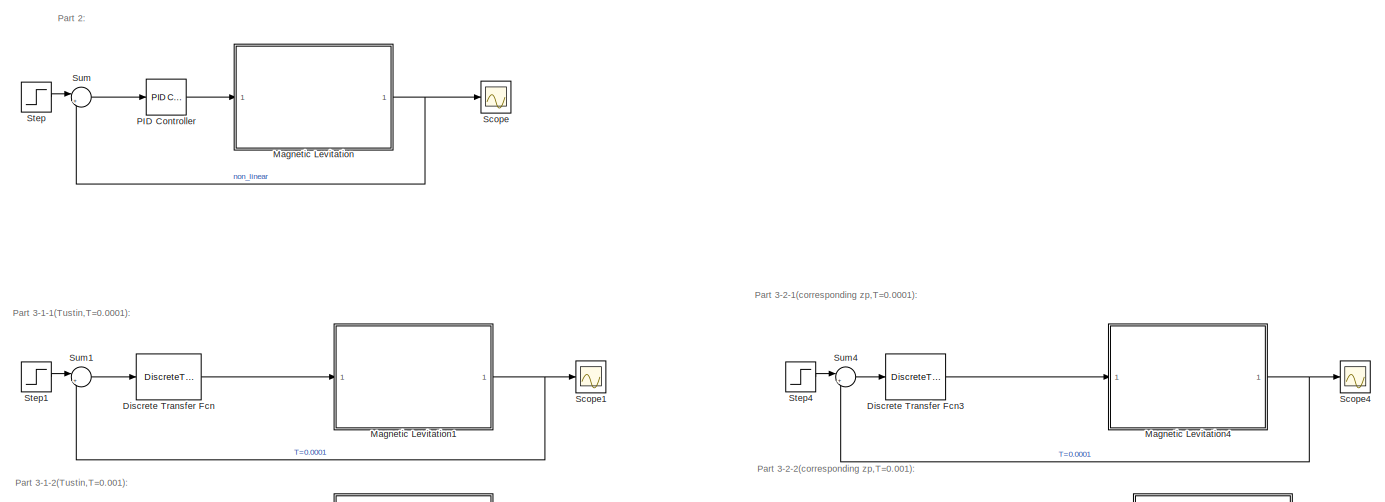
[diagram: root canvas - part 1/4, full width, top band]
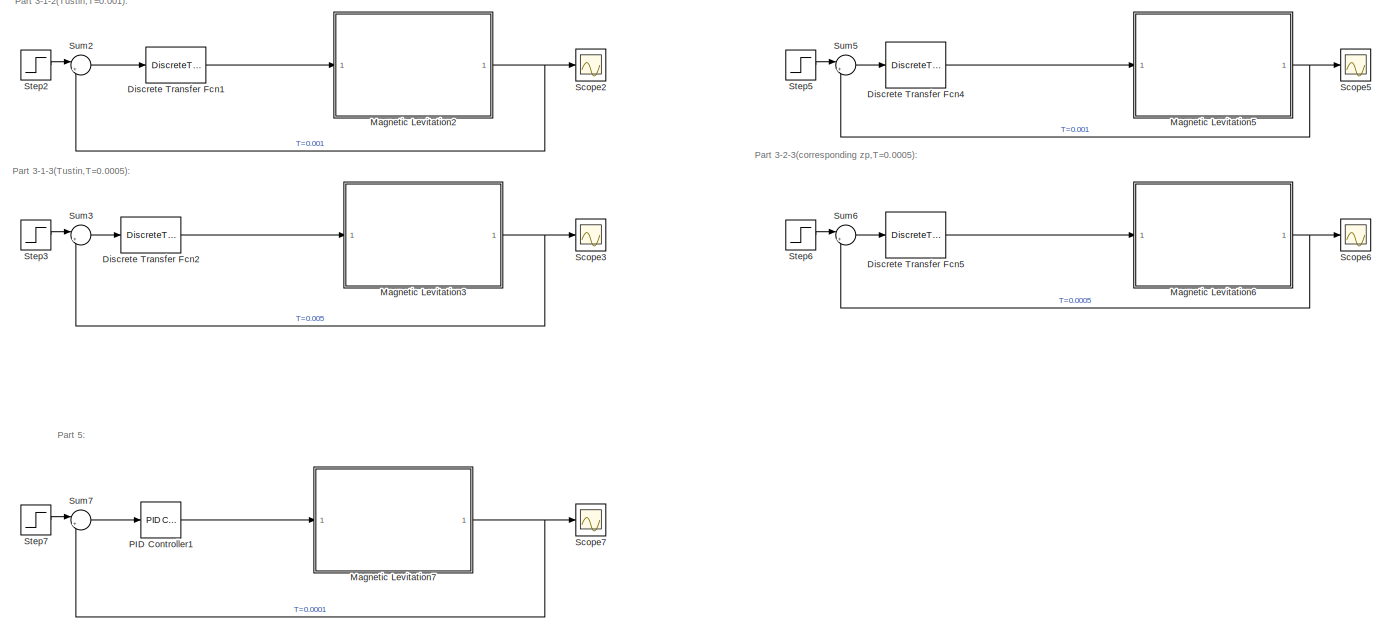
[diagram: root canvas - part 2/4, full width, top band]
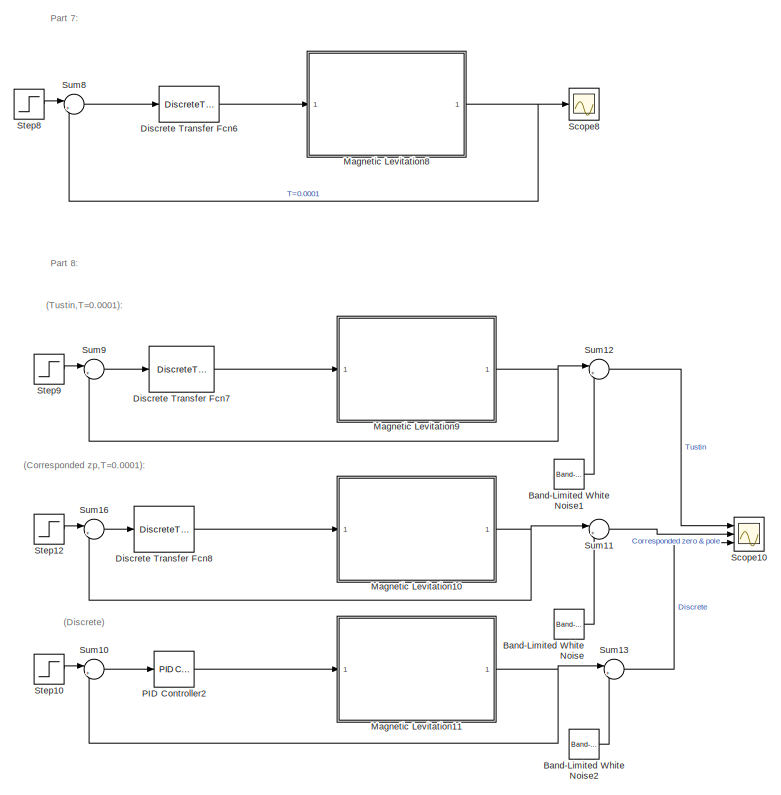
[diagram: root canvas - part 3/4, central region]
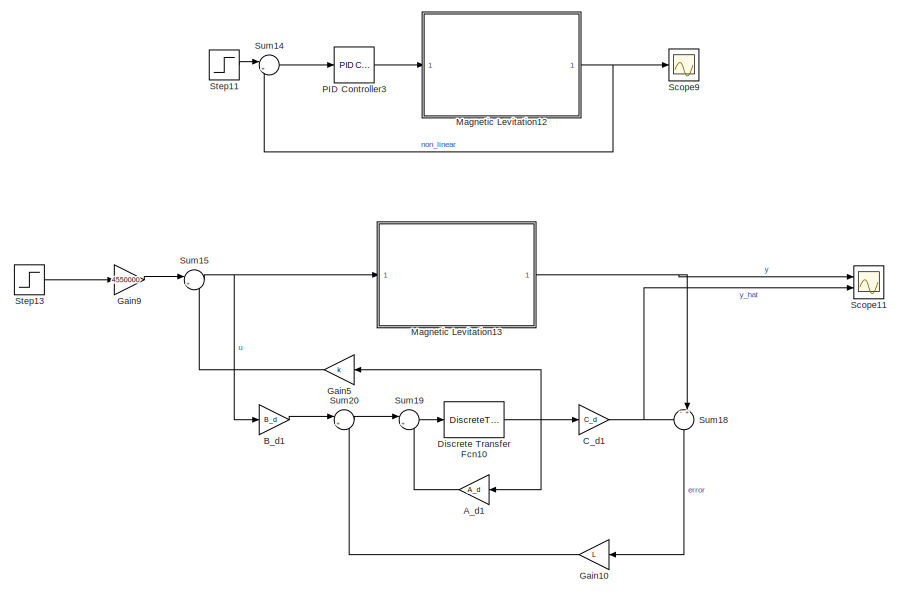
[diagram: root canvas - part 4/4, bottom left region]
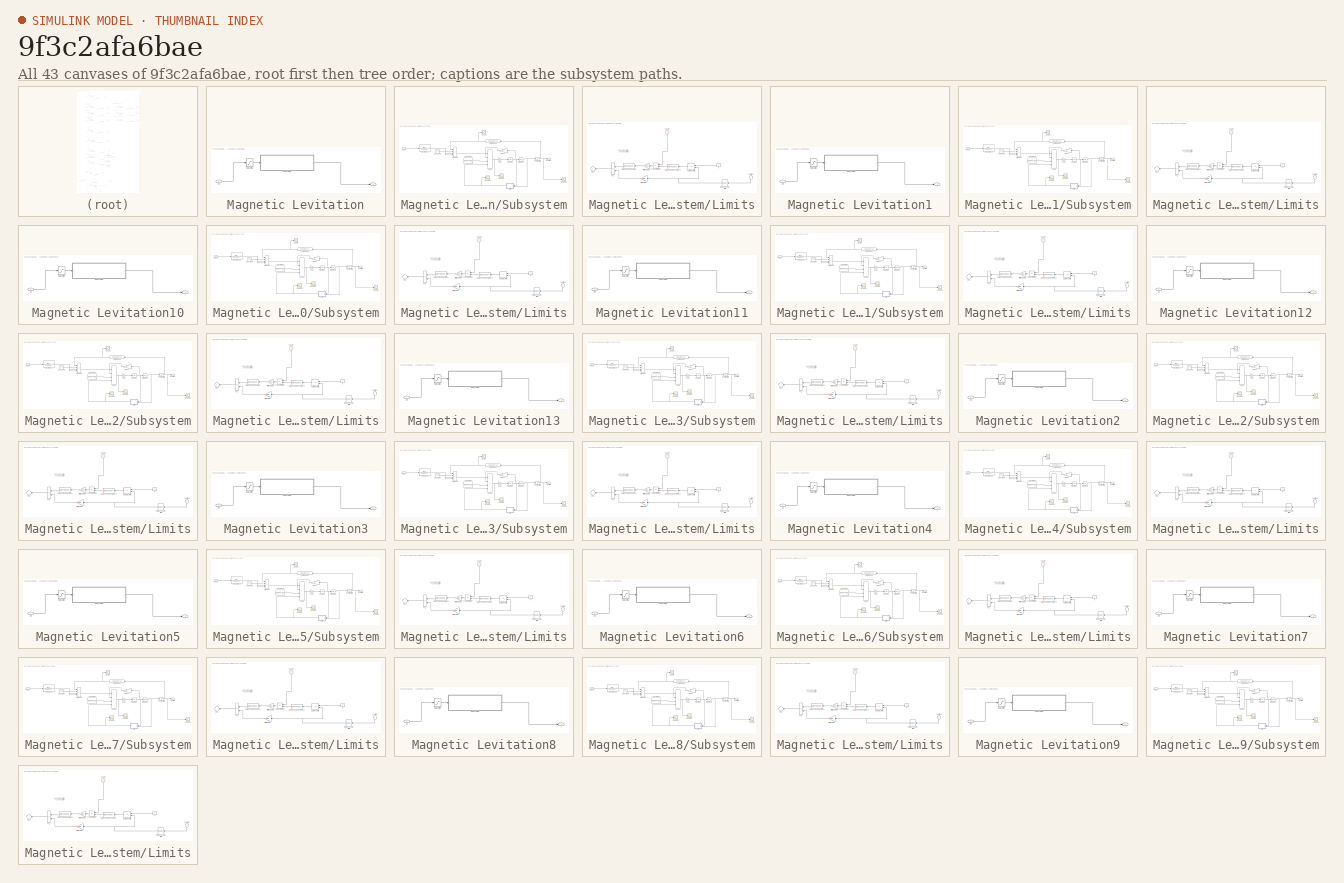
[diagram: thumbnail index - all 43 canvases of the model, root first then tree order]
MODEL slx_9f3c2afa6bae
KIND model
CONFIG AbsTol = auto
CONFIG EnableMultiTasking = off
CONFIG FixedStep = auto
CONFIG MaxStep = auto
CONFIG MinStep = auto
CONFIG RelTol = 1e-3
CONFIG SampleTimeConstraint = Unconstrained
CONFIG SolverName = VariableStepAuto
CONFIG StartTime = 0.0
CONFIG StopTime = 0.1
BLOCK [Gain] A_d1
  Gain = A_d
  Multiplication = Matrix(K*u)
  NameLocation = top
BLOCK [Gain] B_d1
  Gain = B_d
  Multiplication = Matrix(K*u)
BLOCK [Reference] Band-Limited White Noise  REF=simulink/Sources/Band-Limited
White Noise
  Ports = [0, 1]
  SourceBlock = simulink/Sources/Band-Limited\nWhite Noise
  SourceProductBaseCode = SL
  SourceType = Band-Limited White Noise.
BLOCK [Reference] Band-Limited White Noise1  REF=simulink/Sources/Band-Limited
White Noise
  Ports = [0, 1]
  SourceBlock = simulink/Sources/Band-Limited\nWhite Noise
  SourceProductBaseCode = SL
  SourceType = Band-Limited White Noise.
BLOCK [Reference] Band-Limited White Noise2  REF=simulink/Sources/Band-Limited
White Noise
  Ports = [0, 1]
  SourceBlock = simulink/Sources/Band-Limited\nWhite Noise
  SourceProductBaseCode = SL
  SourceType = Band-Limited White Noise.
BLOCK [Gain] C_d1
  Gain = C_d
  Multiplication = Matrix(K*u)
BLOCK [DiscreteTransferFcn] Discrete Transfer Fcn
  Denominator = [9.86914200000000 -8 -1.86914200000000]
  InputPortMap = u0
  Numerator = [38570.0258267180 -77058.6188660459 38488.6093872360]
  Ports = [1, 1]
  SampleTime = 0.0001
BLOCK [DiscreteTransferFcn] Discrete Transfer Fcn1
  Denominator = [62.6914200000000 -8 -54.6914200000000]
  InputPortMap = u0
  Numerator = [38936.8044151132 -77057.8096445937 38122.6400202932]
  Ports = [1, 1]
  SampleTime = 0.001
BLOCK [DiscreteTransferFcn] Discrete Transfer Fcn10
  Denominator = [1 0]
  InputPortMap = u0
  Ports = [1, 1]
BLOCK [DiscreteTransferFcn] Discrete Transfer Fcn2
  Denominator = [33.3457100000000 -8.00000000000000 -25.3457100000000]
  InputPortMap = u0
  Numerator = [38732.9567931308 -77058.4226911484 38325.8745957208]
  Ports = [1, 1]
  SampleTime = 0.0005
BLOCK [DiscreteTransferFcn] Discrete Transfer Fcn3
  Denominator = [1 -1.05315351727480 0.0531535172747958]
  InputPortMap = u0
  Numerator = 1000*[1 -1.99788732081826 0.997889127214699]
  Ports = [1, 1]
  SampleTime = 0.0001
BLOCK [DiscreteTransferFcn] Discrete Transfer Fcn4
  Denominator = [1 -1.00000000000018 1.80019719003715e-13]
  InputPortMap = u0
  Numerator = 1000*[1 -1.97891172719588 0.979090657910839]
  Ports = [1, 1]
  SampleTime = 0.001
BLOCK [DiscreteTransferFcn] Discrete Transfer Fcn5
  Denominator = [1 -1.00000042428731 4.24287307144245e-07]
  InputPortMap = u0
  Numerator = [1000 -1989.44513045919 989.490099955951]
  Ports = [1, 1]
  SampleTime = 0.0005
BLOCK [DiscreteTransferFcn] Discrete Transfer Fcn6
  Commented = through
  Denominator = [3.6e-08 1.26e-07 -9.71-08 -2.29e-07 7.3e-08 7.8658e-08 1.2e-08]
  InputPortMap = u0
  Numerator = [0.5 0.16549 -4.335 6.6569 -3.153 -0.169 0.33]
  Ports = [1, 1]
  SampleTime = 0.0001
BLOCK [DiscreteTransferFcn] Discrete Transfer Fcn7
  Denominator = [9.86914200000000 -8 -1.86914200000000]
  InputPortMap = u0
  Numerator = [38570.0258267180 -77058.6188660459 38488.6093872360]
  Ports = [1, 1]
  SampleTime = 0.0001
BLOCK [DiscreteTransferFcn] Discrete Transfer Fcn8
  Denominator = [1 -1.05315351727480 0.0531535172747958]
  InputPortMap = u0
  Numerator = 1000*[1 -1.99788732081826 0.997889127214699]
  Ports = [1, 1]
  SampleTime = 0.0001
BLOCK [Gain] Gain10
  Gain = L
  Multiplication = Matrix(K*u)
  NameLocation = top
BLOCK [Gain] Gain5
  Gain = k
  Multiplication = Matrix(K*u)
  NameLocation = top
BLOCK [Gain] Gain9
  Gain = 4550000
BLOCK [SubSystem] Magnetic Levitation
  Permissions = NoReadOrWrite
  Ports = [1, 1]
  RequestExecContextInheritance = off
BLOCK [Saturate] Magnetic Levitation/Saturation
  LowerLimit = -6
  UpperLimit = 10
  ZeroCross = off
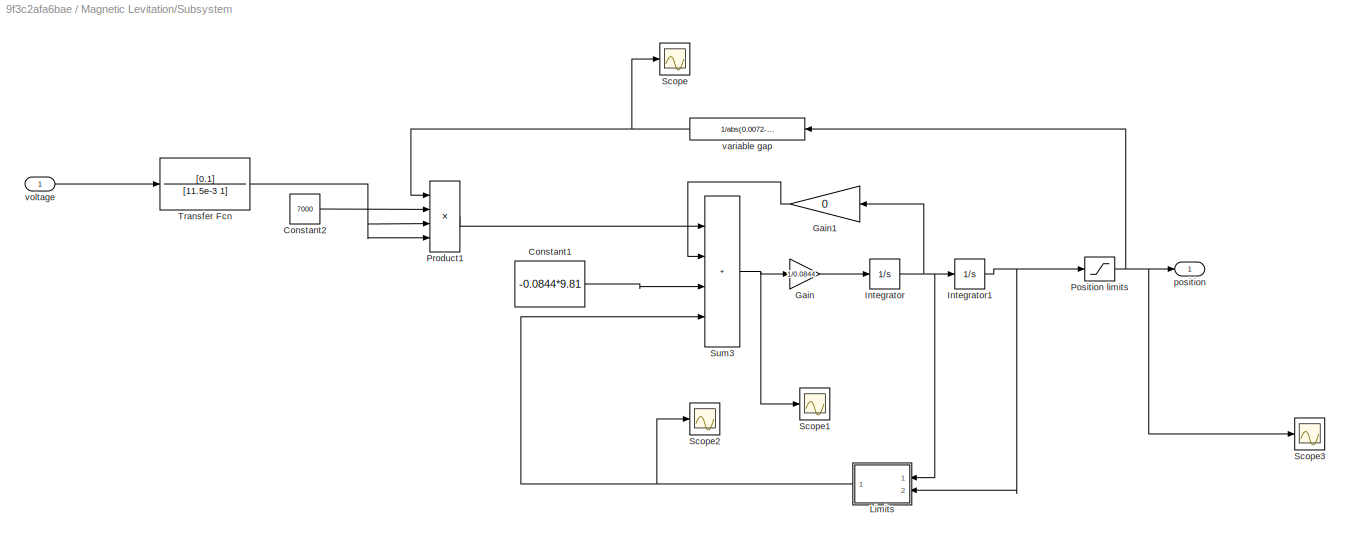
BLOCK [SubSystem] Magnetic Levitation/Subsystem
  Ports = [1, 1]
  RequestExecContextInheritance = off
BLOCK [Constant] Magnetic Levitation/Subsystem/Constant1
  Value = -0.0844*9.81
BLOCK [Constant] Magnetic Levitation/Subsystem/Constant2
  Value = 7000
BLOCK [Gain] Magnetic Levitation/Subsystem/Gain
  Gain = 1/0.0844
BLOCK [Gain] Magnetic Levitation/Subsystem/Gain1
  Gain = 0
  NameLocation = top
BLOCK [Integrator] Magnetic Levitation/Subsystem/Integrator
  Ports = [1, 1]
BLOCK [Integrator] Magnetic Levitation/Subsystem/Integrator1
  LimitOutput = on
  LowerSaturationLimit = 0
  Ports = [1, 1]
  UpperSaturationLimit = 0.005
BLOCK [SubSystem] Magnetic Levitation/Subsystem/Limits
  Ports = [2, 1]
  RequestExecContextInheritance = off
  ShowPortLabels = none
BLOCK [Constant] Magnetic Levitation/Subsystem/Limits/0
  Value = 0
BLOCK [DataTypeConversion] Magnetic Levitation/Subsystem/Limits/Data Type Conversion
  NameLocation = top
  OutDataTypeStr = double
  RndMeth = Floor
  SaturateOnIntegerOverflow = off
BLOCK [DataTypeConversion] Magnetic Levitation/Subsystem/Limits/Data Type Conversion1
  NameLocation = top
  OutDataTypeStr = double
  RndMeth = Floor
  SaturateOnIntegerOverflow = off
BLOCK [DeadZone] Magnetic Levitation/Subsystem/Limits/Distance out of limits
  LowerValue = 0.0002
  UpperValue = 5e-3
  ZeroCross = off
BLOCK [Sum] Magnetic Levitation/Subsystem/Limits/Fc1
  IconShape = rectangular
  InputSameDT = on
  Inputs = --
  OutDataTypeStr = Inherit: Same as first input
  Ports = [2, 1]
  SaturateOnIntegerOverflow = on
BLOCK [Product] Magnetic Levitation/Subsystem/Limits/Just on//off switch 
  InputSameDT = on
  OutDataTypeStr = Inherit: Same as first input
  Ports = [2, 1]
  SaturateOnIntegerOverflow = on
BLOCK [RelationalOperator] Magnetic Levitation/Subsystem/Limits/Outside Limits
  Operator = ~=
  Ports = [2, 1]
BLOCK [Outport] Magnetic Levitation/Subsystem/Limits/force
  VectorParamsAs1DForOutWhenUnconnected = off
BLOCK [Gain] Magnetic Levitation/Subsystem/Limits/limit damping
  Gain = 2800
  OutDataTypeStr = Inherit: Same as input
  ParamDataTypeStr = Inherit: Same as input
  SaturateOnIntegerOverflow = on
BLOCK [Gain] Magnetic Levitation/Subsystem/Limits/limit elasticity
  Gain = 500
  OutDataTypeStr = Inherit: Same as input
  ParamDataTypeStr = Inherit: Same as input
  SaturateOnIntegerOverflow = on
BLOCK [Inport] Magnetic Levitation/Subsystem/Limits/position
  NameLocation = right
  Port = 2
BLOCK [Inport] Magnetic Levitation/Subsystem/Limits/velocity
  NameLocation = right
BLOCK [Saturate] Magnetic Levitation/Subsystem/Position limits
  LowerLimit = 0.00001
  UpperLimit = 0.00499
  ZeroCross = off
BLOCK [Product] Magnetic Levitation/Subsystem/Product1
  Inputs = 4
  Ports = [4, 1]
BLOCK [Scope] Magnetic Levitation/Subsystem/Scope
  Floating = off
  NumInputPorts = 1
  Ports = [1]
  ScopeSpecificationString = Simulink.scopes.TimeScopeBlockCfg('CurrentConfiguration', extmgr.ConfigurationSet(extmgr.Configuration('Core','General UI',true),extmgr.Configuration('Core','Source UI',true),extmgr.Configuration('Sources','WiredSimulink',true,'DataLoggingVariableName','ScopeData1'),extmgr.Configuration('Visuals','Time Domain',true,'SerializedDisplays',{struct('MinYLimReal','-40.54054','MaxYLimReal','374.87487','Y...<+1381ch>  <repeated x14 — deduplicated; at blocks: Scope>
BLOCK [Scope] Magnetic Levitation/Subsystem/Scope1
  Floating = off
  NumInputPorts = 1
  Ports = [1]
  ScopeSpecificationString = Simulink.scopes.TimeScopeBlockCfg('CurrentConfiguration', extmgr.ConfigurationSet(extmgr.Configuration('Core','General UI',true),extmgr.Configuration('Core','Source UI',true),extmgr.Configuration('Sources','WiredSimulink',true,'DataLoggingVariableName','ScopeData2'),extmgr.Configuration('Visuals','Time Domain',true,'SerializedDisplays',{struct('MinYLimReal','-21376391083219120442781708779858395089...<+3841ch>  <repeated x14 — deduplicated; at blocks: Scope1>
BLOCK [Scope] Magnetic Levitation/Subsystem/Scope2
  Floating = off
  NumInputPorts = 1
  Ports = [1]
  ScopeSpecificationString = Simulink.scopes.TimeScopeBlockCfg('CurrentConfiguration', extmgr.ConfigurationSet(extmgr.Configuration('Core','General UI',true),extmgr.Configuration('Core','Source UI',true),extmgr.Configuration('Sources','WiredSimulink',true,'DataLoggingVariableName','ScopeData3'),extmgr.Configuration('Visuals','Time Domain',true,'SerializedDisplays',{struct('MinYLimReal','-0.1107','MaxYLimReal','1.19629','YLabe...<+1363ch>  <repeated x14 — deduplicated; at blocks: Scope2>
BLOCK [Scope] Magnetic Levitation/Subsystem/Scope3
  Floating = off
  NumInputPorts = 1
  Ports = [1]
  ScopeSpecificationString = Simulink.scopes.TimeScopeBlockCfg('CurrentConfiguration', extmgr.ConfigurationSet(extmgr.Configuration('Core','General UI',true),extmgr.Configuration('Core','Source UI',true),extmgr.Configuration('Sources','WiredSimulink',true,'DataLoggingVariableName','ScopeData2'),extmgr.Configuration('Visuals','Time Domain',true,'SerializedDisplays',{struct('MinYLimReal','-0.00029','MaxYLimReal','0.00267','YLab...<+1402ch>  <repeated x14 — deduplicated; at blocks: Scope3>
BLOCK [Sum] Magnetic Levitation/Subsystem/Sum3
  IconShape = rectangular
  Inputs = ++++
  Ports = [4, 1]
BLOCK [TransferFcn] Magnetic Levitation/Subsystem/Transfer Fcn
  Denominator = [11.5e-3 1]
  Numerator = [0.1]
BLOCK [Outport] Magnetic Levitation/Subsystem/position 
  VectorParamsAs1DForOutWhenUnconnected = off
BLOCK [Fcn] Magnetic Levitation/Subsystem/variable gap
  Expr = 1/abs(0.0072-u)
BLOCK [Inport] Magnetic Levitation/Subsystem/voltage
BLOCK [Inport] Magnetic Levitation/Vin
BLOCK [Outport] Magnetic Levitation/y
  VectorParamsAs1DForOutWhenUnconnected = off
BLOCK [SubSystem] Magnetic Levitation1
  Permissions = NoReadOrWrite
  Ports = [1, 1]
  RequestExecContextInheritance = off
BLOCK [Saturate] Magnetic Levitation1/Saturation
  LowerLimit = -6
  UpperLimit = 10
  ZeroCross = off
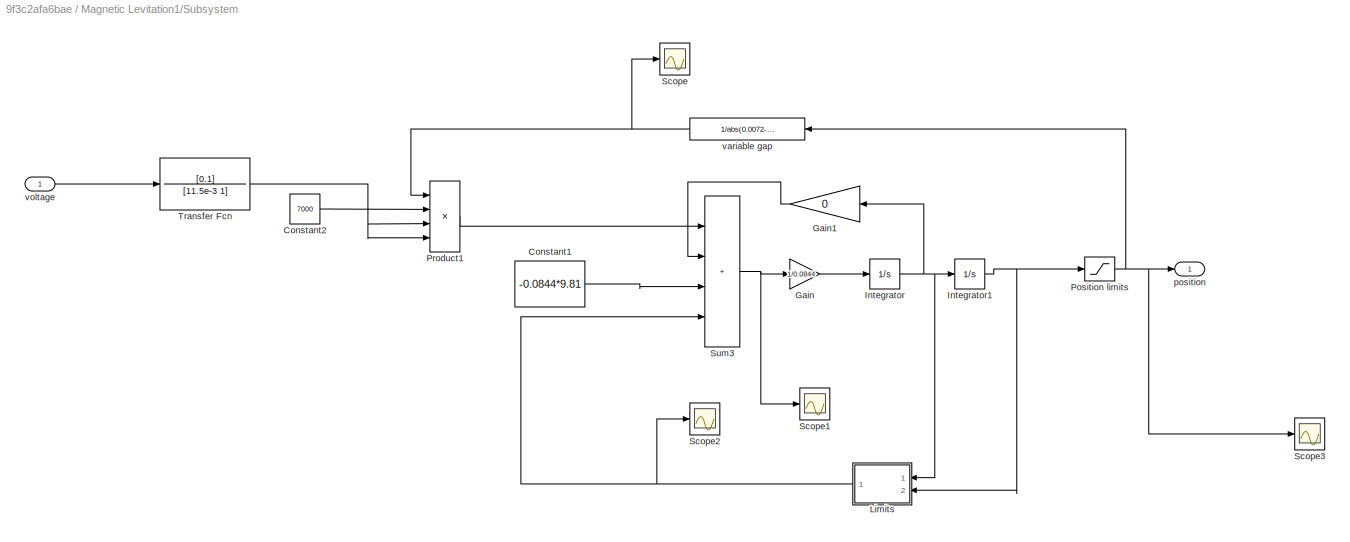
BLOCK [SubSystem] Magnetic Levitation1/Subsystem
  Ports = [1, 1]
  RequestExecContextInheritance = off
BLOCK [Constant] Magnetic Levitation1/Subsystem/Constant1
  Value = -0.0844*9.81
BLOCK [Constant] Magnetic Levitation1/Subsystem/Constant2
  Value = 7000
BLOCK [Gain] Magnetic Levitation1/Subsystem/Gain
  Gain = 1/0.0844
BLOCK [Gain] Magnetic Levitation1/Subsystem/Gain1
  Gain = 0
  NameLocation = top
BLOCK [Integrator] Magnetic Levitation1/Subsystem/Integrator
  Ports = [1, 1]
BLOCK [Integrator] Magnetic Levitation1/Subsystem/Integrator1
  LimitOutput = on
  LowerSaturationLimit = 0
  Ports = [1, 1]
  UpperSaturationLimit = 0.005
BLOCK [SubSystem] Magnetic Levitation1/Subsystem/Limits
  Ports = [2, 1]
  RequestExecContextInheritance = off
  ShowPortLabels = none
BLOCK [Constant] Magnetic Levitation1/Subsystem/Limits/0
  Value = 0
BLOCK [DataTypeConversion] Magnetic Levitation1/Subsystem/Limits/Data Type Conversion
  NameLocation = top
  OutDataTypeStr = double
  RndMeth = Floor
  SaturateOnIntegerOverflow = off
BLOCK [DataTypeConversion] Magnetic Levitation1/Subsystem/Limits/Data Type Conversion1
  NameLocation = top
  OutDataTypeStr = double
  RndMeth = Floor
  SaturateOnIntegerOverflow = off
BLOCK [DeadZone] Magnetic Levitation1/Subsystem/Limits/Distance out of limits
  LowerValue = 0.0002
  UpperValue = 5e-3
  ZeroCross = off
BLOCK [Sum] Magnetic Levitation1/Subsystem/Limits/Fc1
  IconShape = rectangular
  InputSameDT = on
  Inputs = --
  OutDataTypeStr = Inherit: Same as first input
  Ports = [2, 1]
  SaturateOnIntegerOverflow = on
BLOCK [Product] Magnetic Levitation1/Subsystem/Limits/Just on//off switch 
  InputSameDT = on
  OutDataTypeStr = Inherit: Same as first input
  Ports = [2, 1]
  SaturateOnIntegerOverflow = on
BLOCK [RelationalOperator] Magnetic Levitation1/Subsystem/Limits/Outside Limits
  Operator = ~=
  Ports = [2, 1]
BLOCK [Outport] Magnetic Levitation1/Subsystem/Limits/force
  VectorParamsAs1DForOutWhenUnconnected = off
BLOCK [Gain] Magnetic Levitation1/Subsystem/Limits/limit damping
  Gain = 2800
  OutDataTypeStr = Inherit: Same as input
  ParamDataTypeStr = Inherit: Same as input
  SaturateOnIntegerOverflow = on
BLOCK [Gain] Magnetic Levitation1/Subsystem/Limits/limit elasticity
  Gain = 500
  OutDataTypeStr = Inherit: Same as input
  ParamDataTypeStr = Inherit: Same as input
  SaturateOnIntegerOverflow = on
BLOCK [Inport] Magnetic Levitation1/Subsystem/Limits/position
  NameLocation = right
  Port = 2
BLOCK [Inport] Magnetic Levitation1/Subsystem/Limits/velocity
  NameLocation = right
BLOCK [Saturate] Magnetic Levitation1/Subsystem/Position limits
  LowerLimit = 0.00001
  UpperLimit = 0.00499
  ZeroCross = off
BLOCK [Product] Magnetic Levitation1/Subsystem/Product1
  Inputs = 4
  Ports = [4, 1]
BLOCK [Scope] Magnetic Levitation1/Subsystem/Scope
  Floating = off
  NumInputPorts = 1
  Ports = [1]
BLOCK [Scope] Magnetic Levitation1/Subsystem/Scope1
  Floating = off
  NumInputPorts = 1
  Ports = [1]
BLOCK [Scope] Magnetic Levitation1/Subsystem/Scope2
  Floating = off
  NumInputPorts = 1
  Ports = [1]
BLOCK [Scope] Magnetic Levitation1/Subsystem/Scope3
  Floating = off
  NumInputPorts = 1
  Ports = [1]
BLOCK [Sum] Magnetic Levitation1/Subsystem/Sum3
  IconShape = rectangular
  Inputs = ++++
  Ports = [4, 1]
BLOCK [TransferFcn] Magnetic Levitation1/Subsystem/Transfer Fcn
  Denominator = [11.5e-3 1]
  Numerator = [0.1]
BLOCK [Outport] Magnetic Levitation1/Subsystem/position 
  VectorParamsAs1DForOutWhenUnconnected = off
BLOCK [Fcn] Magnetic Levitation1/Subsystem/variable gap
  Expr = 1/abs(0.0072-u)
BLOCK [Inport] Magnetic Levitation1/Subsystem/voltage
BLOCK [Inport] Magnetic Levitation1/Vin
BLOCK [Outport] Magnetic Levitation1/y
  VectorParamsAs1DForOutWhenUnconnected = off
BLOCK [SubSystem] Magnetic Levitation10
  Permissions = NoReadOrWrite
  Ports = [1, 1]
  RequestExecContextInheritance = off
BLOCK [Saturate] Magnetic Levitation10/Saturation
  LowerLimit = -6
  UpperLimit = 10
  ZeroCross = off
BLOCK [SubSystem] Magnetic Levitation10/Subsystem
  Ports = [1, 1]
  RequestExecContextInheritance = off
BLOCK [Constant] Magnetic Levitation10/Subsystem/Constant1
  Value = -0.0844*9.81
BLOCK [Constant] Magnetic Levitation10/Subsystem/Constant2
  Value = 7000
BLOCK [Gain] Magnetic Levitation10/Subsystem/Gain
  Gain = 1/0.0844
BLOCK [Gain] Magnetic Levitation10/Subsystem/Gain1
  Gain = 0
  NameLocation = top
BLOCK [Integrator] Magnetic Levitation10/Subsystem/Integrator
  Ports = [1, 1]
BLOCK [Integrator] Magnetic Levitation10/Subsystem/Integrator1
  LimitOutput = on
  LowerSaturationLimit = 0
  Ports = [1, 1]
  UpperSaturationLimit = 0.005
BLOCK [SubSystem] Magnetic Levitation10/Subsystem/Limits
  Ports = [2, 1]
  RequestExecContextInheritance = off
  ShowPortLabels = none
BLOCK [Constant] Magnetic Levitation10/Subsystem/Limits/0
  Value = 0
BLOCK [DataTypeConversion] Magnetic Levitation10/Subsystem/Limits/Data Type Conversion
  NameLocation = top
  OutDataTypeStr = double
  RndMeth = Floor
  SaturateOnIntegerOverflow = off
BLOCK [DataTypeConversion] Magnetic Levitation10/Subsystem/Limits/Data Type Conversion1
  NameLocation = top
  OutDataTypeStr = double
  RndMeth = Floor
  SaturateOnIntegerOverflow = off
BLOCK [DeadZone] Magnetic Levitation10/Subsystem/Limits/Distance out of limits
  LowerValue = 0.0002
  UpperValue = 5e-3
  ZeroCross = off
BLOCK [Sum] Magnetic Levitation10/Subsystem/Limits/Fc1
  IconShape = rectangular
  InputSameDT = on
  Inputs = --
  OutDataTypeStr = Inherit: Same as first input
  Ports = [2, 1]
  SaturateOnIntegerOverflow = on
BLOCK [Product] Magnetic Levitation10/Subsystem/Limits/Just on//off switch 
  InputSameDT = on
  OutDataTypeStr = Inherit: Same as first input
  Ports = [2, 1]
  SaturateOnIntegerOverflow = on
BLOCK [RelationalOperator] Magnetic Levitation10/Subsystem/Limits/Outside Limits
  Operator = ~=
  Ports = [2, 1]
BLOCK [Outport] Magnetic Levitation10/Subsystem/Limits/force
  VectorParamsAs1DForOutWhenUnconnected = off
BLOCK [Gain] Magnetic Levitation10/Subsystem/Limits/limit damping
  Gain = 2800
  OutDataTypeStr = Inherit: Same as input
  ParamDataTypeStr = Inherit: Same as input
  SaturateOnIntegerOverflow = on
BLOCK [Gain] Magnetic Levitation10/Subsystem/Limits/limit elasticity
  Gain = 500
  OutDataTypeStr = Inherit: Same as input
  ParamDataTypeStr = Inherit: Same as input
  SaturateOnIntegerOverflow = on
BLOCK [Inport] Magnetic Levitation10/Subsystem/Limits/position
  NameLocation = right
  Port = 2
BLOCK [Inport] Magnetic Levitation10/Subsystem/Limits/velocity
  NameLocation = right
BLOCK [Saturate] Magnetic Levitation10/Subsystem/Position limits
  LowerLimit = 0.00001
  UpperLimit = 0.00499
  ZeroCross = off
BLOCK [Product] Magnetic Levitation10/Subsystem/Product1
  Inputs = 4
  Ports = [4, 1]
BLOCK [Scope] Magnetic Levitation10/Subsystem/Scope
  Floating = off
  NumInputPorts = 1
  Ports = [1]
BLOCK [Scope] Magnetic Levitation10/Subsystem/Scope1
  Floating = off
  NumInputPorts = 1
  Ports = [1]
BLOCK [Scope] Magnetic Levitation10/Subsystem/Scope2
  Floating = off
  NumInputPorts = 1
  Ports = [1]
BLOCK [Scope] Magnetic Levitation10/Subsystem/Scope3
  Floating = off
  NumInputPorts = 1
  Ports = [1]
BLOCK [Sum] Magnetic Levitation10/Subsystem/Sum3
  IconShape = rectangular
  Inputs = ++++
  Ports = [4, 1]
BLOCK [TransferFcn] Magnetic Levitation10/Subsystem/Transfer Fcn
  Denominator = [11.5e-3 1]
  Numerator = [0.1]
BLOCK [Outport] Magnetic Levitation10/Subsystem/position 
  VectorParamsAs1DForOutWhenUnconnected = off
BLOCK [Fcn] Magnetic Levitation10/Subsystem/variable gap
  Expr = 1/abs(0.0072-u)
BLOCK [Inport] Magnetic Levitation10/Subsystem/voltage
BLOCK [Inport] Magnetic Levitation10/Vin
BLOCK [Outport] Magnetic Levitation10/y
  VectorParamsAs1DForOutWhenUnconnected = off
BLOCK [SubSystem] Magnetic Levitation11
  Permissions = NoReadOrWrite
  Ports = [1, 1]
  RequestExecContextInheritance = off
BLOCK [Saturate] Magnetic Levitation11/Saturation
  LowerLimit = -6
  UpperLimit = 10
  ZeroCross = off
BLOCK [SubSystem] Magnetic Levitation11/Subsystem
  Ports = [1, 1]
  RequestExecContextInheritance = off
BLOCK [Constant] Magnetic Levitation11/Subsystem/Constant1
  Value = -0.0844*9.81
BLOCK [Constant] Magnetic Levitation11/Subsystem/Constant2
  Value = 7000
BLOCK [Gain] Magnetic Levitation11/Subsystem/Gain
  Gain = 1/0.0844
BLOCK [Gain] Magnetic Levitation11/Subsystem/Gain1
  Gain = 0
  NameLocation = top
BLOCK [Integrator] Magnetic Levitation11/Subsystem/Integrator
  Ports = [1, 1]
BLOCK [Integrator] Magnetic Levitation11/Subsystem/Integrator1
  LimitOutput = on
  LowerSaturationLimit = 0
  Ports = [1, 1]
  UpperSaturationLimit = 0.005
BLOCK [SubSystem] Magnetic Levitation11/Subsystem/Limits
  Ports = [2, 1]
  RequestExecContextInheritance = off
  ShowPortLabels = none
BLOCK [Constant] Magnetic Levitation11/Subsystem/Limits/0
  Value = 0
BLOCK [DataTypeConversion] Magnetic Levitation11/Subsystem/Limits/Data Type Conversion
  NameLocation = top
  OutDataTypeStr = double
  RndMeth = Floor
  SaturateOnIntegerOverflow = off
BLOCK [DataTypeConversion] Magnetic Levitation11/Subsystem/Limits/Data Type Conversion1
  NameLocation = top
  OutDataTypeStr = double
  RndMeth = Floor
  SaturateOnIntegerOverflow = off
BLOCK [DeadZone] Magnetic Levitation11/Subsystem/Limits/Distance out of limits
  LowerValue = 0.0002
  UpperValue = 5e-3
  ZeroCross = off
BLOCK [Sum] Magnetic Levitation11/Subsystem/Limits/Fc1
  IconShape = rectangular
  InputSameDT = on
  Inputs = --
  OutDataTypeStr = Inherit: Same as first input
  Ports = [2, 1]
  SaturateOnIntegerOverflow = on
BLOCK [Product] Magnetic Levitation11/Subsystem/Limits/Just on//off switch 
  InputSameDT = on
  OutDataTypeStr = Inherit: Same as first input
  Ports = [2, 1]
  SaturateOnIntegerOverflow = on
BLOCK [RelationalOperator] Magnetic Levitation11/Subsystem/Limits/Outside Limits
  Operator = ~=
  Ports = [2, 1]
BLOCK [Outport] Magnetic Levitation11/Subsystem/Limits/force
  VectorParamsAs1DForOutWhenUnconnected = off
BLOCK [Gain] Magnetic Levitation11/Subsystem/Limits/limit damping
  Gain = 2800
  OutDataTypeStr = Inherit: Same as input
  ParamDataTypeStr = Inherit: Same as input
  SaturateOnIntegerOverflow = on
BLOCK [Gain] Magnetic Levitation11/Subsystem/Limits/limit elasticity
  Gain = 500
  OutDataTypeStr = Inherit: Same as input
  ParamDataTypeStr = Inherit: Same as input
  SaturateOnIntegerOverflow = on
BLOCK [Inport] Magnetic Levitation11/Subsystem/Limits/position
  NameLocation = right
  Port = 2
BLOCK [Inport] Magnetic Levitation11/Subsystem/Limits/velocity
  NameLocation = right
BLOCK [Saturate] Magnetic Levitation11/Subsystem/Position limits
  LowerLimit = 0.00001
  UpperLimit = 0.00499
  ZeroCross = off
BLOCK [Product] Magnetic Levitation11/Subsystem/Product1
  Inputs = 4
  Ports = [4, 1]
BLOCK [Scope] Magnetic Levitation11/Subsystem/Scope
  Floating = off
  NumInputPorts = 1
  Ports = [1]
BLOCK [Scope] Magnetic Levitation11/Subsystem/Scope1
  Floating = off
  NumInputPorts = 1
  Ports = [1]
BLOCK [Scope] Magnetic Levitation11/Subsystem/Scope2
  Floating = off
  NumInputPorts = 1
  Ports = [1]
BLOCK [Scope] Magnetic Levitation11/Subsystem/Scope3
  Floating = off
  NumInputPorts = 1
  Ports = [1]
BLOCK [Sum] Magnetic Levitation11/Subsystem/Sum3
  IconShape = rectangular
  Inputs = ++++
  Ports = [4, 1]
BLOCK [TransferFcn] Magnetic Levitation11/Subsystem/Transfer Fcn
  Denominator = [11.5e-3 1]
  Numerator = [0.1]
BLOCK [Outport] Magnetic Levitation11/Subsystem/position 
  VectorParamsAs1DForOutWhenUnconnected = off
BLOCK [Fcn] Magnetic Levitation11/Subsystem/variable gap
  Expr = 1/abs(0.0072-u)
BLOCK [Inport] Magnetic Levitation11/Subsystem/voltage
BLOCK [Inport] Magnetic Levitation11/Vin
BLOCK [Outport] Magnetic Levitation11/y
  VectorParamsAs1DForOutWhenUnconnected = off
BLOCK [SubSystem] Magnetic Levitation12
  Permissions = NoReadOrWrite
  Ports = [1, 1]
  RequestExecContextInheritance = off
BLOCK [Saturate] Magnetic Levitation12/Saturation
  LowerLimit = -6
  UpperLimit = 10
  ZeroCross = off
BLOCK [SubSystem] Magnetic Levitation12/Subsystem
  Ports = [1, 1]
  RequestExecContextInheritance = off
BLOCK [Constant] Magnetic Levitation12/Subsystem/Constant1
  Value = -0.0844*9.81
BLOCK [Constant] Magnetic Levitation12/Subsystem/Constant2
  Value = 7000
BLOCK [Gain] Magnetic Levitation12/Subsystem/Gain
  Gain = 1/0.0844
BLOCK [Gain] Magnetic Levitation12/Subsystem/Gain1
  Gain = 0
  NameLocation = top
BLOCK [Integrator] Magnetic Levitation12/Subsystem/Integrator
  Ports = [1, 1]
BLOCK [Integrator] Magnetic Levitation12/Subsystem/Integrator1
  LimitOutput = on
  LowerSaturationLimit = 0
  Ports = [1, 1]
  UpperSaturationLimit = 0.005
BLOCK [SubSystem] Magnetic Levitation12/Subsystem/Limits
  Ports = [2, 1]
  RequestExecContextInheritance = off
  ShowPortLabels = none
BLOCK [Constant] Magnetic Levitation12/Subsystem/Limits/0
  Value = 0
BLOCK [DataTypeConversion] Magnetic Levitation12/Subsystem/Limits/Data Type Conversion
  NameLocation = top
  OutDataTypeStr = double
  RndMeth = Floor
  SaturateOnIntegerOverflow = off
BLOCK [DataTypeConversion] Magnetic Levitation12/Subsystem/Limits/Data Type Conversion1
  NameLocation = top
  OutDataTypeStr = double
  RndMeth = Floor
  SaturateOnIntegerOverflow = off
BLOCK [DeadZone] Magnetic Levitation12/Subsystem/Limits/Distance out of limits
  LowerValue = 0.0002
  UpperValue = 5e-3
  ZeroCross = off
BLOCK [Sum] Magnetic Levitation12/Subsystem/Limits/Fc1
  IconShape = rectangular
  InputSameDT = on
  Inputs = --
  OutDataTypeStr = Inherit: Same as first input
  Ports = [2, 1]
  SaturateOnIntegerOverflow = on
BLOCK [Product] Magnetic Levitation12/Subsystem/Limits/Just on//off switch 
  InputSameDT = on
  OutDataTypeStr = Inherit: Same as first input
  Ports = [2, 1]
  SaturateOnIntegerOverflow = on
BLOCK [RelationalOperator] Magnetic Levitation12/Subsystem/Limits/Outside Limits
  Operator = ~=
  Ports = [2, 1]
BLOCK [Outport] Magnetic Levitation12/Subsystem/Limits/force
  VectorParamsAs1DForOutWhenUnconnected = off
BLOCK [Gain] Magnetic Levitation12/Subsystem/Limits/limit damping
  Gain = 2800
  OutDataTypeStr = Inherit: Same as input
  ParamDataTypeStr = Inherit: Same as input
  SaturateOnIntegerOverflow = on
BLOCK [Gain] Magnetic Levitation12/Subsystem/Limits/limit elasticity
  Gain = 500
  OutDataTypeStr = Inherit: Same as input
  ParamDataTypeStr = Inherit: Same as input
  SaturateOnIntegerOverflow = on
BLOCK [Inport] Magnetic Levitation12/Subsystem/Limits/position
  NameLocation = right
  Port = 2
BLOCK [Inport] Magnetic Levitation12/Subsystem/Limits/velocity
  NameLocation = right
BLOCK [Saturate] Magnetic Levitation12/Subsystem/Position limits
  LowerLimit = 0.00001
  UpperLimit = 0.00499
  ZeroCross = off
BLOCK [Product] Magnetic Levitation12/Subsystem/Product1
  Inputs = 4
  Ports = [4, 1]
BLOCK [Scope] Magnetic Levitation12/Subsystem/Scope
  Floating = off
  NumInputPorts = 1
  Ports = [1]
BLOCK [Scope] Magnetic Levitation12/Subsystem/Scope1
  Floating = off
  NumInputPorts = 1
  Ports = [1]
BLOCK [Scope] Magnetic Levitation12/Subsystem/Scope2
  Floating = off
  NumInputPorts = 1
  Ports = [1]
BLOCK [Scope] Magnetic Levitation12/Subsystem/Scope3
  Floating = off
  NumInputPorts = 1
  Ports = [1]
BLOCK [Sum] Magnetic Levitation12/Subsystem/Sum3
  IconShape = rectangular
  Inputs = ++++
  Ports = [4, 1]
BLOCK [TransferFcn] Magnetic Levitation12/Subsystem/Transfer Fcn
  Denominator = [11.5e-3 1]
  Numerator = [0.1]
BLOCK [Outport] Magnetic Levitation12/Subsystem/position 
  VectorParamsAs1DForOutWhenUnconnected = off
BLOCK [Fcn] Magnetic Levitation12/Subsystem/variable gap
  Expr = 1/abs(0.0072-u)
BLOCK [Inport] Magnetic Levitation12/Subsystem/voltage
BLOCK [Inport] Magnetic Levitation12/Vin
BLOCK [Outport] Magnetic Levitation12/y
  VectorParamsAs1DForOutWhenUnconnected = off
BLOCK [SubSystem] Magnetic Levitation13
  Permissions = NoReadOrWrite
  Ports = [1, 1]
  RequestExecContextInheritance = off
BLOCK [Saturate] Magnetic Levitation13/Saturation
  LowerLimit = -6
  UpperLimit = 10
  ZeroCross = off
BLOCK [SubSystem] Magnetic Levitation13/Subsystem
  Ports = [1, 1]
  RequestExecContextInheritance = off
BLOCK [Constant] Magnetic Levitation13/Subsystem/Constant1
  Value = -0.0844*9.81
BLOCK [Constant] Magnetic Levitation13/Subsystem/Constant2
  Value = 7000
BLOCK [Gain] Magnetic Levitation13/Subsystem/Gain
  Gain = 1/0.0844
BLOCK [Gain] Magnetic Levitation13/Subsystem/Gain1
  Gain = 0
  NameLocation = top
BLOCK [Integrator] Magnetic Levitation13/Subsystem/Integrator
  Ports = [1, 1]
BLOCK [Integrator] Magnetic Levitation13/Subsystem/Integrator1
  LimitOutput = on
  LowerSaturationLimit = 0
  Ports = [1, 1]
  UpperSaturationLimit = 0.005
BLOCK [SubSystem] Magnetic Levitation13/Subsystem/Limits
  Ports = [2, 1]
  RequestExecContextInheritance = off
  ShowPortLabels = none
BLOCK [Constant] Magnetic Levitation13/Subsystem/Limits/0
  Value = 0
BLOCK [DataTypeConversion] Magnetic Levitation13/Subsystem/Limits/Data Type Conversion
  NameLocation = top
  OutDataTypeStr = double
  RndMeth = Floor
  SaturateOnIntegerOverflow = off
BLOCK [DataTypeConversion] Magnetic Levitation13/Subsystem/Limits/Data Type Conversion1
  NameLocation = top
  OutDataTypeStr = double
  RndMeth = Floor
  SaturateOnIntegerOverflow = off
BLOCK [DeadZone] Magnetic Levitation13/Subsystem/Limits/Distance out of limits
  LowerValue = 0.0002
  UpperValue = 5e-3
  ZeroCross = off
BLOCK [Sum] Magnetic Levitation13/Subsystem/Limits/Fc1
  IconShape = rectangular
  InputSameDT = on
  Inputs = --
  OutDataTypeStr = Inherit: Same as first input
  Ports = [2, 1]
  SaturateOnIntegerOverflow = on
BLOCK [Product] Magnetic Levitation13/Subsystem/Limits/Just on//off switch 
  InputSameDT = on
  OutDataTypeStr = Inherit: Same as first input
  Ports = [2, 1]
  SaturateOnIntegerOverflow = on
BLOCK [RelationalOperator] Magnetic Levitation13/Subsystem/Limits/Outside Limits
  Operator = ~=
  Ports = [2, 1]
BLOCK [Outport] Magnetic Levitation13/Subsystem/Limits/force
  VectorParamsAs1DForOutWhenUnconnected = off
BLOCK [Gain] Magnetic Levitation13/Subsystem/Limits/limit damping
  Gain = 2800
  OutDataTypeStr = Inherit: Same as input
  ParamDataTypeStr = Inherit: Same as input
  SaturateOnIntegerOverflow = on
BLOCK [Gain] Magnetic Levitation13/Subsystem/Limits/limit elasticity
  Gain = 500
  OutDataTypeStr = Inherit: Same as input
  ParamDataTypeStr = Inherit: Same as input
  SaturateOnIntegerOverflow = on
BLOCK [Inport] Magnetic Levitation13/Subsystem/Limits/position
  NameLocation = right
  Port = 2
BLOCK [Inport] Magnetic Levitation13/Subsystem/Limits/velocity
  NameLocation = right
BLOCK [Saturate] Magnetic Levitation13/Subsystem/Position limits
  LowerLimit = 0.00001
  UpperLimit = 0.00499
  ZeroCross = off
BLOCK [Product] Magnetic Levitation13/Subsystem/Product1
  Inputs = 4
  Ports = [4, 1]
BLOCK [Scope] Magnetic Levitation13/Subsystem/Scope
  Floating = off
  NumInputPorts = 1
  Ports = [1]
BLOCK [Scope] Magnetic Levitation13/Subsystem/Scope1
  Floating = off
  NumInputPorts = 1
  Ports = [1]
BLOCK [Scope] Magnetic Levitation13/Subsystem/Scope2
  Floating = off
  NumInputPorts = 1
  Ports = [1]
BLOCK [Scope] Magnetic Levitation13/Subsystem/Scope3
  Floating = off
  NumInputPorts = 1
  Ports = [1]
BLOCK [Sum] Magnetic Levitation13/Subsystem/Sum3
  IconShape = rectangular
  Inputs = ++++
  Ports = [4, 1]
BLOCK [TransferFcn] Magnetic Levitation13/Subsystem/Transfer Fcn
  Denominator = [11.5e-3 1]
  Numerator = [0.1]
BLOCK [Outport] Magnetic Levitation13/Subsystem/position 
  VectorParamsAs1DForOutWhenUnconnected = off
BLOCK [Fcn] Magnetic Levitation13/Subsystem/variable gap
  Expr = 1/abs(0.0072-u)
BLOCK [Inport] Magnetic Levitation13/Subsystem/voltage
BLOCK [Inport] Magnetic Levitation13/Vin
BLOCK [Outport] Magnetic Levitation13/y
  VectorParamsAs1DForOutWhenUnconnected = off
BLOCK [SubSystem] Magnetic Levitation2
  Permissions = NoReadOrWrite
  Ports = [1, 1]
  RequestExecContextInheritance = off
BLOCK [Saturate] Magnetic Levitation2/Saturation
  LowerLimit = -6
  UpperLimit = 10
  ZeroCross = off
BLOCK [SubSystem] Magnetic Levitation2/Subsystem
  Ports = [1, 1]
  RequestExecContextInheritance = off
BLOCK [Constant] Magnetic Levitation2/Subsystem/Constant1
  Value = -0.0844*9.81
BLOCK [Constant] Magnetic Levitation2/Subsystem/Constant2
  Value = 7000
BLOCK [Gain] Magnetic Levitation2/Subsystem/Gain
  Gain = 1/0.0844
BLOCK [Gain] Magnetic Levitation2/Subsystem/Gain1
  Gain = 0
  NameLocation = top
BLOCK [Integrator] Magnetic Levitation2/Subsystem/Integrator
  Ports = [1, 1]
BLOCK [Integrator] Magnetic Levitation2/Subsystem/Integrator1
  LimitOutput = on
  LowerSaturationLimit = 0
  Ports = [1, 1]
  UpperSaturationLimit = 0.005
BLOCK [SubSystem] Magnetic Levitation2/Subsystem/Limits
  Ports = [2, 1]
  RequestExecContextInheritance = off
  ShowPortLabels = none
BLOCK [Constant] Magnetic Levitation2/Subsystem/Limits/0
  Value = 0
BLOCK [DataTypeConversion] Magnetic Levitation2/Subsystem/Limits/Data Type Conversion
  NameLocation = top
  OutDataTypeStr = double
  RndMeth = Floor
  SaturateOnIntegerOverflow = off
BLOCK [DataTypeConversion] Magnetic Levitation2/Subsystem/Limits/Data Type Conversion1
  NameLocation = top
  OutDataTypeStr = double
  RndMeth = Floor
  SaturateOnIntegerOverflow = off
BLOCK [DeadZone] Magnetic Levitation2/Subsystem/Limits/Distance out of limits
  LowerValue = 0.0002
  UpperValue = 5e-3
  ZeroCross = off
BLOCK [Sum] Magnetic Levitation2/Subsystem/Limits/Fc1
  IconShape = rectangular
  InputSameDT = on
  Inputs = --
  OutDataTypeStr = Inherit: Same as first input
  Ports = [2, 1]
  SaturateOnIntegerOverflow = on
BLOCK [Product] Magnetic Levitation2/Subsystem/Limits/Just on//off switch 
  InputSameDT = on
  OutDataTypeStr = Inherit: Same as first input
  Ports = [2, 1]
  SaturateOnIntegerOverflow = on
BLOCK [RelationalOperator] Magnetic Levitation2/Subsystem/Limits/Outside Limits
  Operator = ~=
  Ports = [2, 1]
BLOCK [Outport] Magnetic Levitation2/Subsystem/Limits/force
  VectorParamsAs1DForOutWhenUnconnected = off
BLOCK [Gain] Magnetic Levitation2/Subsystem/Limits/limit damping
  Gain = 2800
  OutDataTypeStr = Inherit: Same as input
  ParamDataTypeStr = Inherit: Same as input
  SaturateOnIntegerOverflow = on
BLOCK [Gain] Magnetic Levitation2/Subsystem/Limits/limit elasticity
  Gain = 500
  OutDataTypeStr = Inherit: Same as input
  ParamDataTypeStr = Inherit: Same as input
  SaturateOnIntegerOverflow = on
BLOCK [Inport] Magnetic Levitation2/Subsystem/Limits/position
  NameLocation = right
  Port = 2
BLOCK [Inport] Magnetic Levitation2/Subsystem/Limits/velocity
  NameLocation = right
BLOCK [Saturate] Magnetic Levitation2/Subsystem/Position limits
  LowerLimit = 0.00001
  UpperLimit = 0.00499
  ZeroCross = off
BLOCK [Product] Magnetic Levitation2/Subsystem/Product1
  Inputs = 4
  Ports = [4, 1]
BLOCK [Scope] Magnetic Levitation2/Subsystem/Scope
  Floating = off
  NumInputPorts = 1
  Ports = [1]
BLOCK [Scope] Magnetic Levitation2/Subsystem/Scope1
  Floating = off
  NumInputPorts = 1
  Ports = [1]
BLOCK [Scope] Magnetic Levitation2/Subsystem/Scope2
  Floating = off
  NumInputPorts = 1
  Ports = [1]
BLOCK [Scope] Magnetic Levitation2/Subsystem/Scope3
  Floating = off
  NumInputPorts = 1
  Ports = [1]
BLOCK [Sum] Magnetic Levitation2/Subsystem/Sum3
  IconShape = rectangular
  Inputs = ++++
  Ports = [4, 1]
BLOCK [TransferFcn] Magnetic Levitation2/Subsystem/Transfer Fcn
  Denominator = [11.5e-3 1]
  Numerator = [0.1]
BLOCK [Outport] Magnetic Levitation2/Subsystem/position 
  VectorParamsAs1DForOutWhenUnconnected = off
BLOCK [Fcn] Magnetic Levitation2/Subsystem/variable gap
  Expr = 1/abs(0.0072-u)
BLOCK [Inport] Magnetic Levitation2/Subsystem/voltage
BLOCK [Inport] Magnetic Levitation2/Vin
BLOCK [Outport] Magnetic Levitation2/y
  VectorParamsAs1DForOutWhenUnconnected = off
BLOCK [SubSystem] Magnetic Levitation3
  Permissions = NoReadOrWrite
  Ports = [1, 1]
  RequestExecContextInheritance = off
BLOCK [Saturate] Magnetic Levitation3/Saturation
  LowerLimit = -6
  UpperLimit = 10
  ZeroCross = off
BLOCK [SubSystem] Magnetic Levitation3/Subsystem
  Ports = [1, 1]
  RequestExecContextInheritance = off
BLOCK [Constant] Magnetic Levitation3/Subsystem/Constant1
  Value = -0.0844*9.81
BLOCK [Constant] Magnetic Levitation3/Subsystem/Constant2
  Value = 7000
BLOCK [Gain] Magnetic Levitation3/Subsystem/Gain
  Gain = 1/0.0844
BLOCK [Gain] Magnetic Levitation3/Subsystem/Gain1
  Gain = 0
  NameLocation = top
BLOCK [Integrator] Magnetic Levitation3/Subsystem/Integrator
  Ports = [1, 1]
BLOCK [Integrator] Magnetic Levitation3/Subsystem/Integrator1
  LimitOutput = on
  LowerSaturationLimit = 0
  Ports = [1, 1]
  UpperSaturationLimit = 0.005
BLOCK [SubSystem] Magnetic Levitation3/Subsystem/Limits
  Ports = [2, 1]
  RequestExecContextInheritance = off
  ShowPortLabels = none
BLOCK [Constant] Magnetic Levitation3/Subsystem/Limits/0
  Value = 0
BLOCK [DataTypeConversion] Magnetic Levitation3/Subsystem/Limits/Data Type Conversion
  NameLocation = top
  OutDataTypeStr = double
  RndMeth = Floor
  SaturateOnIntegerOverflow = off
BLOCK [DataTypeConversion] Magnetic Levitation3/Subsystem/Limits/Data Type Conversion1
  NameLocation = top
  OutDataTypeStr = double
  RndMeth = Floor
  SaturateOnIntegerOverflow = off
BLOCK [DeadZone] Magnetic Levitation3/Subsystem/Limits/Distance out of limits
  LowerValue = 0.0002
  UpperValue = 5e-3
  ZeroCross = off
BLOCK [Sum] Magnetic Levitation3/Subsystem/Limits/Fc1
  IconShape = rectangular
  InputSameDT = on
  Inputs = --
  OutDataTypeStr = Inherit: Same as first input
  Ports = [2, 1]
  SaturateOnIntegerOverflow = on
BLOCK [Product] Magnetic Levitation3/Subsystem/Limits/Just on//off switch 
  InputSameDT = on
  OutDataTypeStr = Inherit: Same as first input
  Ports = [2, 1]
  SaturateOnIntegerOverflow = on
BLOCK [RelationalOperator] Magnetic Levitation3/Subsystem/Limits/Outside Limits
  Operator = ~=
  Ports = [2, 1]
BLOCK [Outport] Magnetic Levitation3/Subsystem/Limits/force
  VectorParamsAs1DForOutWhenUnconnected = off
BLOCK [Gain] Magnetic Levitation3/Subsystem/Limits/limit damping
  Gain = 2800
  OutDataTypeStr = Inherit: Same as input
  ParamDataTypeStr = Inherit: Same as input
  SaturateOnIntegerOverflow = on
BLOCK [Gain] Magnetic Levitation3/Subsystem/Limits/limit elasticity
  Gain = 500
  OutDataTypeStr = Inherit: Same as input
  ParamDataTypeStr = Inherit: Same as input
  SaturateOnIntegerOverflow = on
BLOCK [Inport] Magnetic Levitation3/Subsystem/Limits/position
  NameLocation = right
  Port = 2
BLOCK [Inport] Magnetic Levitation3/Subsystem/Limits/velocity
  NameLocation = right
BLOCK [Saturate] Magnetic Levitation3/Subsystem/Position limits
  LowerLimit = 0.00001
  UpperLimit = 0.00499
  ZeroCross = off
BLOCK [Product] Magnetic Levitation3/Subsystem/Product1
  Inputs = 4
  Ports = [4, 1]
BLOCK [Scope] Magnetic Levitation3/Subsystem/Scope
  Floating = off
  NumInputPorts = 1
  Ports = [1]
BLOCK [Scope] Magnetic Levitation3/Subsystem/Scope1
  Floating = off
  NumInputPorts = 1
  Ports = [1]
BLOCK [Scope] Magnetic Levitation3/Subsystem/Scope2
  Floating = off
  NumInputPorts = 1
  Ports = [1]
BLOCK [Scope] Magnetic Levitation3/Subsystem/Scope3
  Floating = off
  NumInputPorts = 1
  Ports = [1]
BLOCK [Sum] Magnetic Levitation3/Subsystem/Sum3
  IconShape = rectangular
  Inputs = ++++
  Ports = [4, 1]
BLOCK [TransferFcn] Magnetic Levitation3/Subsystem/Transfer Fcn
  Denominator = [11.5e-3 1]
  Numerator = [0.1]
BLOCK [Outport] Magnetic Levitation3/Subsystem/position 
  VectorParamsAs1DForOutWhenUnconnected = off
BLOCK [Fcn] Magnetic Levitation3/Subsystem/variable gap
  Expr = 1/abs(0.0072-u)
BLOCK [Inport] Magnetic Levitation3/Subsystem/voltage
BLOCK [Inport] Magnetic Levitation3/Vin
BLOCK [Outport] Magnetic Levitation3/y
  VectorParamsAs1DForOutWhenUnconnected = off
BLOCK [SubSystem] Magnetic Levitation4
  Permissions = NoReadOrWrite
  Ports = [1, 1]
  RequestExecContextInheritance = off
BLOCK [Saturate] Magnetic Levitation4/Saturation
  LowerLimit = -6
  UpperLimit = 10
  ZeroCross = off
BLOCK [SubSystem] Magnetic Levitation4/Subsystem
  Ports = [1, 1]
  RequestExecContextInheritance = off
BLOCK [Constant] Magnetic Levitation4/Subsystem/Constant1
  Value = -0.0844*9.81
BLOCK [Constant] Magnetic Levitation4/Subsystem/Constant2
  Value = 7000
BLOCK [Gain] Magnetic Levitation4/Subsystem/Gain
  Gain = 1/0.0844
BLOCK [Gain] Magnetic Levitation4/Subsystem/Gain1
  Gain = 0
  NameLocation = top
BLOCK [Integrator] Magnetic Levitation4/Subsystem/Integrator
  Ports = [1, 1]
BLOCK [Integrator] Magnetic Levitation4/Subsystem/Integrator1
  LimitOutput = on
  LowerSaturationLimit = 0
  Ports = [1, 1]
  UpperSaturationLimit = 0.005
BLOCK [SubSystem] Magnetic Levitation4/Subsystem/Limits
  Ports = [2, 1]
  RequestExecContextInheritance = off
  ShowPortLabels = none
BLOCK [Constant] Magnetic Levitation4/Subsystem/Limits/0
  Value = 0
BLOCK [DataTypeConversion] Magnetic Levitation4/Subsystem/Limits/Data Type Conversion
  NameLocation = top
  OutDataTypeStr = double
  RndMeth = Floor
  SaturateOnIntegerOverflow = off
BLOCK [DataTypeConversion] Magnetic Levitation4/Subsystem/Limits/Data Type Conversion1
  NameLocation = top
  OutDataTypeStr = double
  RndMeth = Floor
  SaturateOnIntegerOverflow = off
BLOCK [DeadZone] Magnetic Levitation4/Subsystem/Limits/Distance out of limits
  LowerValue = 0.0002
  UpperValue = 5e-3
  ZeroCross = off
BLOCK [Sum] Magnetic Levitation4/Subsystem/Limits/Fc1
  IconShape = rectangular
  InputSameDT = on
  Inputs = --
  OutDataTypeStr = Inherit: Same as first input
  Ports = [2, 1]
  SaturateOnIntegerOverflow = on
BLOCK [Product] Magnetic Levitation4/Subsystem/Limits/Just on//off switch 
  InputSameDT = on
  OutDataTypeStr = Inherit: Same as first input
  Ports = [2, 1]
  SaturateOnIntegerOverflow = on
BLOCK [RelationalOperator] Magnetic Levitation4/Subsystem/Limits/Outside Limits
  Operator = ~=
  Ports = [2, 1]
BLOCK [Outport] Magnetic Levitation4/Subsystem/Limits/force
  VectorParamsAs1DForOutWhenUnconnected = off
BLOCK [Gain] Magnetic Levitation4/Subsystem/Limits/limit damping
  Gain = 2800
  OutDataTypeStr = Inherit: Same as input
  ParamDataTypeStr = Inherit: Same as input
  SaturateOnIntegerOverflow = on
BLOCK [Gain] Magnetic Levitation4/Subsystem/Limits/limit elasticity
  Gain = 500
  OutDataTypeStr = Inherit: Same as input
  ParamDataTypeStr = Inherit: Same as input
  SaturateOnIntegerOverflow = on
BLOCK [Inport] Magnetic Levitation4/Subsystem/Limits/position
  NameLocation = right
  Port = 2
BLOCK [Inport] Magnetic Levitation4/Subsystem/Limits/velocity
  NameLocation = right
BLOCK [Saturate] Magnetic Levitation4/Subsystem/Position limits
  LowerLimit = 0.00001
  UpperLimit = 0.00499
  ZeroCross = off
BLOCK [Product] Magnetic Levitation4/Subsystem/Product1
  Inputs = 4
  Ports = [4, 1]
BLOCK [Scope] Magnetic Levitation4/Subsystem/Scope
  Floating = off
  NumInputPorts = 1
  Ports = [1]
BLOCK [Scope] Magnetic Levitation4/Subsystem/Scope1
  Floating = off
  NumInputPorts = 1
  Ports = [1]
BLOCK [Scope] Magnetic Levitation4/Subsystem/Scope2
  Floating = off
  NumInputPorts = 1
  Ports = [1]
BLOCK [Scope] Magnetic Levitation4/Subsystem/Scope3
  Floating = off
  NumInputPorts = 1
  Ports = [1]
BLOCK [Sum] Magnetic Levitation4/Subsystem/Sum3
  IconShape = rectangular
  Inputs = ++++
  Ports = [4, 1]
BLOCK [TransferFcn] Magnetic Levitation4/Subsystem/Transfer Fcn
  Denominator = [11.5e-3 1]
  Numerator = [0.1]
BLOCK [Outport] Magnetic Levitation4/Subsystem/position 
  VectorParamsAs1DForOutWhenUnconnected = off
BLOCK [Fcn] Magnetic Levitation4/Subsystem/variable gap
  Expr = 1/abs(0.0072-u)
BLOCK [Inport] Magnetic Levitation4/Subsystem/voltage
BLOCK [Inport] Magnetic Levitation4/Vin
BLOCK [Outport] Magnetic Levitation4/y
  VectorParamsAs1DForOutWhenUnconnected = off
BLOCK [SubSystem] Magnetic Levitation5
  Permissions = NoReadOrWrite
  Ports = [1, 1]
  RequestExecContextInheritance = off
BLOCK [Saturate] Magnetic Levitation5/Saturation
  LowerLimit = -6
  UpperLimit = 10
  ZeroCross = off
BLOCK [SubSystem] Magnetic Levitation5/Subsystem
  Ports = [1, 1]
  RequestExecContextInheritance = off
BLOCK [Constant] Magnetic Levitation5/Subsystem/Constant1
  Value = -0.0844*9.81
BLOCK [Constant] Magnetic Levitation5/Subsystem/Constant2
  Value = 7000
BLOCK [Gain] Magnetic Levitation5/Subsystem/Gain
  Gain = 1/0.0844
BLOCK [Gain] Magnetic Levitation5/Subsystem/Gain1
  Gain = 0
  NameLocation = top
BLOCK [Integrator] Magnetic Levitation5/Subsystem/Integrator
  Ports = [1, 1]
BLOCK [Integrator] Magnetic Levitation5/Subsystem/Integrator1
  LimitOutput = on
  LowerSaturationLimit = 0
  Ports = [1, 1]
  UpperSaturationLimit = 0.005
BLOCK [SubSystem] Magnetic Levitation5/Subsystem/Limits
  Ports = [2, 1]
  RequestExecContextInheritance = off
  ShowPortLabels = none
BLOCK [Constant] Magnetic Levitation5/Subsystem/Limits/0
  Value = 0
BLOCK [DataTypeConversion] Magnetic Levitation5/Subsystem/Limits/Data Type Conversion
  NameLocation = top
  OutDataTypeStr = double
  RndMeth = Floor
  SaturateOnIntegerOverflow = off
BLOCK [DataTypeConversion] Magnetic Levitation5/Subsystem/Limits/Data Type Conversion1
  NameLocation = top
  OutDataTypeStr = double
  RndMeth = Floor
  SaturateOnIntegerOverflow = off
BLOCK [DeadZone] Magnetic Levitation5/Subsystem/Limits/Distance out of limits
  LowerValue = 0.0002
  UpperValue = 5e-3
  ZeroCross = off
BLOCK [Sum] Magnetic Levitation5/Subsystem/Limits/Fc1
  IconShape = rectangular
  InputSameDT = on
  Inputs = --
  OutDataTypeStr = Inherit: Same as first input
  Ports = [2, 1]
  SaturateOnIntegerOverflow = on
BLOCK [Product] Magnetic Levitation5/Subsystem/Limits/Just on//off switch 
  InputSameDT = on
  OutDataTypeStr = Inherit: Same as first input
  Ports = [2, 1]
  SaturateOnIntegerOverflow = on
BLOCK [RelationalOperator] Magnetic Levitation5/Subsystem/Limits/Outside Limits
  Operator = ~=
  Ports = [2, 1]
BLOCK [Outport] Magnetic Levitation5/Subsystem/Limits/force
  VectorParamsAs1DForOutWhenUnconnected = off
BLOCK [Gain] Magnetic Levitation5/Subsystem/Limits/limit damping
  Gain = 2800
  OutDataTypeStr = Inherit: Same as input
  ParamDataTypeStr = Inherit: Same as input
  SaturateOnIntegerOverflow = on
BLOCK [Gain] Magnetic Levitation5/Subsystem/Limits/limit elasticity
  Gain = 500
  OutDataTypeStr = Inherit: Same as input
  ParamDataTypeStr = Inherit: Same as input
  SaturateOnIntegerOverflow = on
BLOCK [Inport] Magnetic Levitation5/Subsystem/Limits/position
  NameLocation = right
  Port = 2
BLOCK [Inport] Magnetic Levitation5/Subsystem/Limits/velocity
  NameLocation = right
BLOCK [Saturate] Magnetic Levitation5/Subsystem/Position limits
  LowerLimit = 0.00001
  UpperLimit = 0.00499
  ZeroCross = off
BLOCK [Product] Magnetic Levitation5/Subsystem/Product1
  Inputs = 4
  Ports = [4, 1]
BLOCK [Scope] Magnetic Levitation5/Subsystem/Scope
  Floating = off
  NumInputPorts = 1
  Ports = [1]
BLOCK [Scope] Magnetic Levitation5/Subsystem/Scope1
  Floating = off
  NumInputPorts = 1
  Ports = [1]
BLOCK [Scope] Magnetic Levitation5/Subsystem/Scope2
  Floating = off
  NumInputPorts = 1
  Ports = [1]
BLOCK [Scope] Magnetic Levitation5/Subsystem/Scope3
  Floating = off
  NumInputPorts = 1
  Ports = [1]
BLOCK [Sum] Magnetic Levitation5/Subsystem/Sum3
  IconShape = rectangular
  Inputs = ++++
  Ports = [4, 1]
BLOCK [TransferFcn] Magnetic Levitation5/Subsystem/Transfer Fcn
  Denominator = [11.5e-3 1]
  Numerator = [0.1]
BLOCK [Outport] Magnetic Levitation5/Subsystem/position 
  VectorParamsAs1DForOutWhenUnconnected = off
BLOCK [Fcn] Magnetic Levitation5/Subsystem/variable gap
  Expr = 1/abs(0.0072-u)
BLOCK [Inport] Magnetic Levitation5/Subsystem/voltage
BLOCK [Inport] Magnetic Levitation5/Vin
BLOCK [Outport] Magnetic Levitation5/y
  VectorParamsAs1DForOutWhenUnconnected = off
BLOCK [SubSystem] Magnetic Levitation6
  Permissions = NoReadOrWrite
  Ports = [1, 1]
  RequestExecContextInheritance = off
BLOCK [Saturate] Magnetic Levitation6/Saturation
  LowerLimit = -6
  UpperLimit = 10
  ZeroCross = off
BLOCK [SubSystem] Magnetic Levitation6/Subsystem
  Ports = [1, 1]
  RequestExecContextInheritance = off
BLOCK [Constant] Magnetic Levitation6/Subsystem/Constant1
  Value = -0.0844*9.81
BLOCK [Constant] Magnetic Levitation6/Subsystem/Constant2
  Value = 7000
BLOCK [Gain] Magnetic Levitation6/Subsystem/Gain
  Gain = 1/0.0844
BLOCK [Gain] Magnetic Levitation6/Subsystem/Gain1
  Gain = 0
  NameLocation = top
BLOCK [Integrator] Magnetic Levitation6/Subsystem/Integrator
  Ports = [1, 1]
BLOCK [Integrator] Magnetic Levitation6/Subsystem/Integrator1
  LimitOutput = on
  LowerSaturationLimit = 0
  Ports = [1, 1]
  UpperSaturationLimit = 0.005
BLOCK [SubSystem] Magnetic Levitation6/Subsystem/Limits
  Ports = [2, 1]
  RequestExecContextInheritance = off
  ShowPortLabels = none
BLOCK [Constant] Magnetic Levitation6/Subsystem/Limits/0
  Value = 0
BLOCK [DataTypeConversion] Magnetic Levitation6/Subsystem/Limits/Data Type Conversion
  NameLocation = top
  OutDataTypeStr = double
  RndMeth = Floor
  SaturateOnIntegerOverflow = off
BLOCK [DataTypeConversion] Magnetic Levitation6/Subsystem/Limits/Data Type Conversion1
  NameLocation = top
  OutDataTypeStr = double
  RndMeth = Floor
  SaturateOnIntegerOverflow = off
BLOCK [DeadZone] Magnetic Levitation6/Subsystem/Limits/Distance out of limits
  LowerValue = 0.0002
  UpperValue = 5e-3
  ZeroCross = off
BLOCK [Sum] Magnetic Levitation6/Subsystem/Limits/Fc1
  IconShape = rectangular
  InputSameDT = on
  Inputs = --
  OutDataTypeStr = Inherit: Same as first input
  Ports = [2, 1]
  SaturateOnIntegerOverflow = on
BLOCK [Product] Magnetic Levitation6/Subsystem/Limits/Just on//off switch 
  InputSameDT = on
  OutDataTypeStr = Inherit: Same as first input
  Ports = [2, 1]
  SaturateOnIntegerOverflow = on
BLOCK [RelationalOperator] Magnetic Levitation6/Subsystem/Limits/Outside Limits
  Operator = ~=
  Ports = [2, 1]
BLOCK [Outport] Magnetic Levitation6/Subsystem/Limits/force
  VectorParamsAs1DForOutWhenUnconnected = off
BLOCK [Gain] Magnetic Levitation6/Subsystem/Limits/limit damping
  Gain = 2800
  OutDataTypeStr = Inherit: Same as input
  ParamDataTypeStr = Inherit: Same as input
  SaturateOnIntegerOverflow = on
BLOCK [Gain] Magnetic Levitation6/Subsystem/Limits/limit elasticity
  Gain = 500
  OutDataTypeStr = Inherit: Same as input
  ParamDataTypeStr = Inherit: Same as input
  SaturateOnIntegerOverflow = on
BLOCK [Inport] Magnetic Levitation6/Subsystem/Limits/position
  NameLocation = right
  Port = 2
BLOCK [Inport] Magnetic Levitation6/Subsystem/Limits/velocity
  NameLocation = right
BLOCK [Saturate] Magnetic Levitation6/Subsystem/Position limits
  LowerLimit = 0.00001
  UpperLimit = 0.00499
  ZeroCross = off
BLOCK [Product] Magnetic Levitation6/Subsystem/Product1
  Inputs = 4
  Ports = [4, 1]
BLOCK [Scope] Magnetic Levitation6/Subsystem/Scope
  Floating = off
  NumInputPorts = 1
  Ports = [1]
BLOCK [Scope] Magnetic Levitation6/Subsystem/Scope1
  Floating = off
  NumInputPorts = 1
  Ports = [1]
BLOCK [Scope] Magnetic Levitation6/Subsystem/Scope2
  Floating = off
  NumInputPorts = 1
  Ports = [1]
BLOCK [Scope] Magnetic Levitation6/Subsystem/Scope3
  Floating = off
  NumInputPorts = 1
  Ports = [1]
BLOCK [Sum] Magnetic Levitation6/Subsystem/Sum3
  IconShape = rectangular
  Inputs = ++++
  Ports = [4, 1]
BLOCK [TransferFcn] Magnetic Levitation6/Subsystem/Transfer Fcn
  Denominator = [11.5e-3 1]
  Numerator = [0.1]
BLOCK [Outport] Magnetic Levitation6/Subsystem/position 
  VectorParamsAs1DForOutWhenUnconnected = off
BLOCK [Fcn] Magnetic Levitation6/Subsystem/variable gap
  Expr = 1/abs(0.0072-u)
BLOCK [Inport] Magnetic Levitation6/Subsystem/voltage
BLOCK [Inport] Magnetic Levitation6/Vin
BLOCK [Outport] Magnetic Levitation6/y
  VectorParamsAs1DForOutWhenUnconnected = off
BLOCK [SubSystem] Magnetic Levitation7
  Permissions = NoReadOrWrite
  Ports = [1, 1]
  RequestExecContextInheritance = off
BLOCK [Saturate] Magnetic Levitation7/Saturation
  LowerLimit = -6
  UpperLimit = 10
  ZeroCross = off
BLOCK [SubSystem] Magnetic Levitation7/Subsystem
  Ports = [1, 1]
  RequestExecContextInheritance = off
BLOCK [Constant] Magnetic Levitation7/Subsystem/Constant1
  Value = -0.0844*9.81
BLOCK [Constant] Magnetic Levitation7/Subsystem/Constant2
  Value = 7000
BLOCK [Gain] Magnetic Levitation7/Subsystem/Gain
  Gain = 1/0.0844
BLOCK [Gain] Magnetic Levitation7/Subsystem/Gain1
  Gain = 0
  NameLocation = top
BLOCK [Integrator] Magnetic Levitation7/Subsystem/Integrator
  Ports = [1, 1]
BLOCK [Integrator] Magnetic Levitation7/Subsystem/Integrator1
  LimitOutput = on
  LowerSaturationLimit = 0
  Ports = [1, 1]
  UpperSaturationLimit = 0.005
BLOCK [SubSystem] Magnetic Levitation7/Subsystem/Limits
  Ports = [2, 1]
  RequestExecContextInheritance = off
  ShowPortLabels = none
BLOCK [Constant] Magnetic Levitation7/Subsystem/Limits/0
  Value = 0
BLOCK [DataTypeConversion] Magnetic Levitation7/Subsystem/Limits/Data Type Conversion
  NameLocation = top
  OutDataTypeStr = double
  RndMeth = Floor
  SaturateOnIntegerOverflow = off
BLOCK [DataTypeConversion] Magnetic Levitation7/Subsystem/Limits/Data Type Conversion1
  NameLocation = top
  OutDataTypeStr = double
  RndMeth = Floor
  SaturateOnIntegerOverflow = off
BLOCK [DeadZone] Magnetic Levitation7/Subsystem/Limits/Distance out of limits
  LowerValue = 0.0002
  UpperValue = 5e-3
  ZeroCross = off
BLOCK [Sum] Magnetic Levitation7/Subsystem/Limits/Fc1
  IconShape = rectangular
  InputSameDT = on
  Inputs = --
  OutDataTypeStr = Inherit: Same as first input
  Ports = [2, 1]
  SaturateOnIntegerOverflow = on
BLOCK [Product] Magnetic Levitation7/Subsystem/Limits/Just on//off switch 
  InputSameDT = on
  OutDataTypeStr = Inherit: Same as first input
  Ports = [2, 1]
  SaturateOnIntegerOverflow = on
BLOCK [RelationalOperator] Magnetic Levitation7/Subsystem/Limits/Outside Limits
  Operator = ~=
  Ports = [2, 1]
BLOCK [Outport] Magnetic Levitation7/Subsystem/Limits/force
  VectorParamsAs1DForOutWhenUnconnected = off
BLOCK [Gain] Magnetic Levitation7/Subsystem/Limits/limit damping
  Gain = 2800
  OutDataTypeStr = Inherit: Same as input
  ParamDataTypeStr = Inherit: Same as input
  SaturateOnIntegerOverflow = on
BLOCK [Gain] Magnetic Levitation7/Subsystem/Limits/limit elasticity
  Gain = 500
  OutDataTypeStr = Inherit: Same as input
  ParamDataTypeStr = Inherit: Same as input
  SaturateOnIntegerOverflow = on
BLOCK [Inport] Magnetic Levitation7/Subsystem/Limits/position
  NameLocation = right
  Port = 2
BLOCK [Inport] Magnetic Levitation7/Subsystem/Limits/velocity
  NameLocation = right
BLOCK [Saturate] Magnetic Levitation7/Subsystem/Position limits
  LowerLimit = 0.00001
  UpperLimit = 0.00499
  ZeroCross = off
BLOCK [Product] Magnetic Levitation7/Subsystem/Product1
  Inputs = 4
  Ports = [4, 1]
BLOCK [Scope] Magnetic Levitation7/Subsystem/Scope
  Floating = off
  NumInputPorts = 1
  Ports = [1]
BLOCK [Scope] Magnetic Levitation7/Subsystem/Scope1
  Floating = off
  NumInputPorts = 1
  Ports = [1]
BLOCK [Scope] Magnetic Levitation7/Subsystem/Scope2
  Floating = off
  NumInputPorts = 1
  Ports = [1]
BLOCK [Scope] Magnetic Levitation7/Subsystem/Scope3
  Floating = off
  NumInputPorts = 1
  Ports = [1]
BLOCK [Sum] Magnetic Levitation7/Subsystem/Sum3
  IconShape = rectangular
  Inputs = ++++
  Ports = [4, 1]
BLOCK [TransferFcn] Magnetic Levitation7/Subsystem/Transfer Fcn
  Denominator = [11.5e-3 1]
  Numerator = [0.1]
BLOCK [Outport] Magnetic Levitation7/Subsystem/position 
  VectorParamsAs1DForOutWhenUnconnected = off
BLOCK [Fcn] Magnetic Levitation7/Subsystem/variable gap
  Expr = 1/abs(0.0072-u)
BLOCK [Inport] Magnetic Levitation7/Subsystem/voltage
BLOCK [Inport] Magnetic Levitation7/Vin
BLOCK [Outport] Magnetic Levitation7/y
  VectorParamsAs1DForOutWhenUnconnected = off
BLOCK [SubSystem] Magnetic Levitation8
  Commented = through
  Permissions = NoReadOrWrite
  Ports = [1, 1]
  RequestExecContextInheritance = off
BLOCK [Saturate] Magnetic Levitation8/Saturation
  LowerLimit = -6
  UpperLimit = 10
  ZeroCross = off
BLOCK [SubSystem] Magnetic Levitation8/Subsystem
  Ports = [1, 1]
  RequestExecContextInheritance = off
BLOCK [Constant] Magnetic Levitation8/Subsystem/Constant1
  Value = -0.0844*9.81
BLOCK [Constant] Magnetic Levitation8/Subsystem/Constant2
  Value = 7000
BLOCK [Gain] Magnetic Levitation8/Subsystem/Gain
  Gain = 1/0.0844
BLOCK [Gain] Magnetic Levitation8/Subsystem/Gain1
  Gain = 0
  NameLocation = top
BLOCK [Integrator] Magnetic Levitation8/Subsystem/Integrator
  Ports = [1, 1]
BLOCK [Integrator] Magnetic Levitation8/Subsystem/Integrator1
  LimitOutput = on
  LowerSaturationLimit = 0
  Ports = [1, 1]
  UpperSaturationLimit = 0.005
BLOCK [SubSystem] Magnetic Levitation8/Subsystem/Limits
  Ports = [2, 1]
  RequestExecContextInheritance = off
  ShowPortLabels = none
BLOCK [Constant] Magnetic Levitation8/Subsystem/Limits/0
  Value = 0
BLOCK [DataTypeConversion] Magnetic Levitation8/Subsystem/Limits/Data Type Conversion
  NameLocation = top
  OutDataTypeStr = double
  RndMeth = Floor
  SaturateOnIntegerOverflow = off
BLOCK [DataTypeConversion] Magnetic Levitation8/Subsystem/Limits/Data Type Conversion1
  NameLocation = top
  OutDataTypeStr = double
  RndMeth = Floor
  SaturateOnIntegerOverflow = off
BLOCK [DeadZone] Magnetic Levitation8/Subsystem/Limits/Distance out of limits
  LowerValue = 0.0002
  UpperValue = 5e-3
  ZeroCross = off
BLOCK [Sum] Magnetic Levitation8/Subsystem/Limits/Fc1
  IconShape = rectangular
  InputSameDT = on
  Inputs = --
  OutDataTypeStr = Inherit: Same as first input
  Ports = [2, 1]
  SaturateOnIntegerOverflow = on
BLOCK [Product] Magnetic Levitation8/Subsystem/Limits/Just on//off switch 
  InputSameDT = on
  OutDataTypeStr = Inherit: Same as first input
  Ports = [2, 1]
  SaturateOnIntegerOverflow = on
BLOCK [RelationalOperator] Magnetic Levitation8/Subsystem/Limits/Outside Limits
  Operator = ~=
  Ports = [2, 1]
BLOCK [Outport] Magnetic Levitation8/Subsystem/Limits/force
  VectorParamsAs1DForOutWhenUnconnected = off
BLOCK [Gain] Magnetic Levitation8/Subsystem/Limits/limit damping
  Gain = 2800
  OutDataTypeStr = Inherit: Same as input
  ParamDataTypeStr = Inherit: Same as input
  SaturateOnIntegerOverflow = on
BLOCK [Gain] Magnetic Levitation8/Subsystem/Limits/limit elasticity
  Gain = 500
  OutDataTypeStr = Inherit: Same as input
  ParamDataTypeStr = Inherit: Same as input
  SaturateOnIntegerOverflow = on
BLOCK [Inport] Magnetic Levitation8/Subsystem/Limits/position
  NameLocation = right
  Port = 2
BLOCK [Inport] Magnetic Levitation8/Subsystem/Limits/velocity
  NameLocation = right
BLOCK [Saturate] Magnetic Levitation8/Subsystem/Position limits
  LowerLimit = 0.00001
  UpperLimit = 0.00499
  ZeroCross = off
BLOCK [Product] Magnetic Levitation8/Subsystem/Product1
  Inputs = 4
  Ports = [4, 1]
BLOCK [Scope] Magnetic Levitation8/Subsystem/Scope
  Floating = off
  NumInputPorts = 1
  Ports = [1]
BLOCK [Scope] Magnetic Levitation8/Subsystem/Scope1
  Floating = off
  NumInputPorts = 1
  Ports = [1]
BLOCK [Scope] Magnetic Levitation8/Subsystem/Scope2
  Floating = off
  NumInputPorts = 1
  Ports = [1]
BLOCK [Scope] Magnetic Levitation8/Subsystem/Scope3
  Floating = off
  NumInputPorts = 1
  Ports = [1]
BLOCK [Sum] Magnetic Levitation8/Subsystem/Sum3
  IconShape = rectangular
  Inputs = ++++
  Ports = [4, 1]
BLOCK [TransferFcn] Magnetic Levitation8/Subsystem/Transfer Fcn
  Denominator = [11.5e-3 1]
  Numerator = [0.1]
BLOCK [Outport] Magnetic Levitation8/Subsystem/position 
  VectorParamsAs1DForOutWhenUnconnected = off
BLOCK [Fcn] Magnetic Levitation8/Subsystem/variable gap
  Expr = 1/abs(0.0072-u)
BLOCK [Inport] Magnetic Levitation8/Subsystem/voltage
BLOCK [Inport] Magnetic Levitation8/Vin
BLOCK [Outport] Magnetic Levitation8/y
  VectorParamsAs1DForOutWhenUnconnected = off
BLOCK [SubSystem] Magnetic Levitation9
  Permissions = NoReadOrWrite
  Ports = [1, 1]
  RequestExecContextInheritance = off
BLOCK [Saturate] Magnetic Levitation9/Saturation
  LowerLimit = -6
  UpperLimit = 10
  ZeroCross = off
BLOCK [SubSystem] Magnetic Levitation9/Subsystem
  Ports = [1, 1]
  RequestExecContextInheritance = off
BLOCK [Constant] Magnetic Levitation9/Subsystem/Constant1
  Value = -0.0844*9.81
BLOCK [Constant] Magnetic Levitation9/Subsystem/Constant2
  Value = 7000
BLOCK [Gain] Magnetic Levitation9/Subsystem/Gain
  Gain = 1/0.0844
BLOCK [Gain] Magnetic Levitation9/Subsystem/Gain1
  Gain = 0
  NameLocation = top
BLOCK [Integrator] Magnetic Levitation9/Subsystem/Integrator
  Ports = [1, 1]
BLOCK [Integrator] Magnetic Levitation9/Subsystem/Integrator1
  LimitOutput = on
  LowerSaturationLimit = 0
  Ports = [1, 1]
  UpperSaturationLimit = 0.005
BLOCK [SubSystem] Magnetic Levitation9/Subsystem/Limits
  Ports = [2, 1]
  RequestExecContextInheritance = off
  ShowPortLabels = none
BLOCK [Constant] Magnetic Levitation9/Subsystem/Limits/0
  Value = 0
BLOCK [DataTypeConversion] Magnetic Levitation9/Subsystem/Limits/Data Type Conversion
  NameLocation = top
  OutDataTypeStr = double
  RndMeth = Floor
  SaturateOnIntegerOverflow = off
BLOCK [DataTypeConversion] Magnetic Levitation9/Subsystem/Limits/Data Type Conversion1
  NameLocation = top
  OutDataTypeStr = double
  RndMeth = Floor
  SaturateOnIntegerOverflow = off
BLOCK [DeadZone] Magnetic Levitation9/Subsystem/Limits/Distance out of limits
  LowerValue = 0.0002
  UpperValue = 5e-3
  ZeroCross = off
BLOCK [Sum] Magnetic Levitation9/Subsystem/Limits/Fc1
  IconShape = rectangular
  InputSameDT = on
  Inputs = --
  OutDataTypeStr = Inherit: Same as first input
  Ports = [2, 1]
  SaturateOnIntegerOverflow = on
BLOCK [Product] Magnetic Levitation9/Subsystem/Limits/Just on//off switch 
  InputSameDT = on
  OutDataTypeStr = Inherit: Same as first input
  Ports = [2, 1]
  SaturateOnIntegerOverflow = on
BLOCK [RelationalOperator] Magnetic Levitation9/Subsystem/Limits/Outside Limits
  Operator = ~=
  Ports = [2, 1]
BLOCK [Outport] Magnetic Levitation9/Subsystem/Limits/force
  VectorParamsAs1DForOutWhenUnconnected = off
BLOCK [Gain] Magnetic Levitation9/Subsystem/Limits/limit damping
  Gain = 2800
  OutDataTypeStr = Inherit: Same as input
  ParamDataTypeStr = Inherit: Same as input
  SaturateOnIntegerOverflow = on
BLOCK [Gain] Magnetic Levitation9/Subsystem/Limits/limit elasticity
  Gain = 500
  OutDataTypeStr = Inherit: Same as input
  ParamDataTypeStr = Inherit: Same as input
  SaturateOnIntegerOverflow = on
BLOCK [Inport] Magnetic Levitation9/Subsystem/Limits/position
  NameLocation = right
  Port = 2
BLOCK [Inport] Magnetic Levitation9/Subsystem/Limits/velocity
  NameLocation = right
BLOCK [Saturate] Magnetic Levitation9/Subsystem/Position limits
  LowerLimit = 0.00001
  UpperLimit = 0.00499
  ZeroCross = off
BLOCK [Product] Magnetic Levitation9/Subsystem/Product1
  Inputs = 4
  Ports = [4, 1]
BLOCK [Scope] Magnetic Levitation9/Subsystem/Scope
  Floating = off
  NumInputPorts = 1
  Ports = [1]
BLOCK [Scope] Magnetic Levitation9/Subsystem/Scope1
  Floating = off
  NumInputPorts = 1
  Ports = [1]
BLOCK [Scope] Magnetic Levitation9/Subsystem/Scope2
  Floating = off
  NumInputPorts = 1
  Ports = [1]
BLOCK [Scope] Magnetic Levitation9/Subsystem/Scope3
  Floating = off
  NumInputPorts = 1
  Ports = [1]
BLOCK [Sum] Magnetic Levitation9/Subsystem/Sum3
  IconShape = rectangular
  Inputs = ++++
  Ports = [4, 1]
BLOCK [TransferFcn] Magnetic Levitation9/Subsystem/Transfer Fcn
  Denominator = [11.5e-3 1]
  Numerator = [0.1]
BLOCK [Outport] Magnetic Levitation9/Subsystem/position 
  VectorParamsAs1DForOutWhenUnconnected = off
BLOCK [Fcn] Magnetic Levitation9/Subsystem/variable gap
  Expr = 1/abs(0.0072-u)
BLOCK [Inport] Magnetic Levitation9/Subsystem/voltage
BLOCK [Inport] Magnetic Levitation9/Vin
BLOCK [Outport] Magnetic Levitation9/y
  VectorParamsAs1DForOutWhenUnconnected = off
BLOCK [Reference] PID Controller  REF=slpidlib/PID Controller
  Ports = [1, 1]
  SourceBlock = slpidlib/PID Controller
  SourceProductBaseCode = SL
  SourceType = PID 1dof
BLOCK [Reference] PID Controller1  REF=slpidlib/PID Controller
  Ports = [1, 1]
  SourceBlock = slpidlib/PID Controller
  SourceProductBaseCode = SL
  SourceType = PID 1dof
BLOCK [Reference] PID Controller2  REF=slpidlib/PID Controller
  Ports = [1, 1]
  SourceBlock = slpidlib/PID Controller
  SourceProductBaseCode = SL
  SourceType = PID 1dof
BLOCK [Reference] PID Controller3  REF=slpidlib/PID Controller
  Ports = [1, 1]
  SourceBlock = slpidlib/PID Controller
  SourceProductBaseCode = SL
  SourceType = PID 1dof
BLOCK [Scope] Scope
  Floating = off
  NumInputPorts = 1
  Ports = [1]
  ScopeSpecificationString = Simulink.scopes.TimeScopeBlockCfg('CurrentConfiguration', extmgr.ConfigurationSet(extmgr.Configuration('Core','General UI',true,'FigureColor',[1 1 1]),extmgr.Configuration('Core','Source UI',true),extmgr.Configuration('Sources','WiredSimulink',true,'DataLoggingVariableName','ScopeData1'),extmgr.Configuration('Visuals','Time Domain',true,'SerializedDisplays',{struct('MinYLimReal','-0.00000','MaxYLi...<+1527ch>
BLOCK [Scope] Scope1
  Floating = off
  NumInputPorts = 1
  Ports = [1]
  ScopeSpecificationString = Simulink.scopes.TimeScopeBlockCfg('CurrentConfiguration', extmgr.ConfigurationSet(extmgr.Configuration('Core','General UI',true,'FigureColor',[1 1 1]),extmgr.Configuration('Core','Source UI',true),extmgr.Configuration('Sources','WiredSimulink',true,'DataLoggingVariableName','ScopeData2'),extmgr.Configuration('Visuals','Time Domain',true,'SerializedDisplays',{struct('MinYLimReal','-0.00024','MaxYLi...<+1438ch>
BLOCK [Scope] Scope10
  Floating = off
  NumInputPorts = 3
  Ports = [3]
  ScopeSpecificationString = Simulink.scopes.TimeScopeBlockCfg('CurrentConfiguration', extmgr.ConfigurationSet(extmgr.Configuration('Core','General UI',true,'FigureColor',[1 1 1]),extmgr.Configuration('Core','Source UI',true),extmgr.Configuration('Sources','WiredSimulink',true,'DataLoggingVariableName','ScopeData10'),extmgr.Configuration('Visuals','Time Domain',true,'SerializedDisplays',{struct('MinYLimReal','-0.16955','MaxYL...<+1492ch>
BLOCK [Scope] Scope11
  Floating = off
  NumInputPorts = 2
  Ports = [2]
  ScopeSpecificationString = Simulink.scopes.TimeScopeBlockCfg('CurrentConfiguration', extmgr.ConfigurationSet(extmgr.Configuration('Core','General UI',true,'FigureColor',[1 1 1]),extmgr.Configuration('Core','Source UI',true),extmgr.Configuration('Sources','WiredSimulink',true,'DataLoggingVariableName','ScopeData2'),extmgr.Configuration('Visuals','Time Domain',true,'SerializedDisplays',{struct('MinYLimReal','-1549346420469747...<+3895ch>
BLOCK [Scope] Scope2
  Floating = off
  NumInputPorts = 1
  Ports = [1]
  ScopeSpecificationString = Simulink.scopes.TimeScopeBlockCfg('CurrentConfiguration', extmgr.ConfigurationSet(extmgr.Configuration('Core','General UI',true,'FigureColor',[1 1 1]),extmgr.Configuration('Core','Source UI',true),extmgr.Configuration('Sources','WiredSimulink',true,'DataLoggingVariableName','ScopeData3'),extmgr.Configuration('Visuals','Time Domain',true,'SerializedDisplays',{struct('MinYLimReal','-0.00024','MaxYLi...<+1436ch>
BLOCK [Scope] Scope3
  Floating = off
  NumInputPorts = 1
  Ports = [1]
  ScopeSpecificationString = Simulink.scopes.TimeScopeBlockCfg('CurrentConfiguration', extmgr.ConfigurationSet(extmgr.Configuration('Core','General UI',true,'FigureColor',[1 1 1]),extmgr.Configuration('Core','Source UI',true),extmgr.Configuration('Sources','WiredSimulink',true,'DataLoggingVariableName','ScopeData4'),extmgr.Configuration('Visuals','Time Domain',true,'SerializedDisplays',{struct('MinYLimReal','-0.00024','MaxYLi...<+1437ch>
BLOCK [Scope] Scope4
  Floating = off
  NumInputPorts = 1
  Ports = [1]
  ScopeSpecificationString = Simulink.scopes.TimeScopeBlockCfg('CurrentConfiguration', extmgr.ConfigurationSet(extmgr.Configuration('Core','General UI',true,'FigureColor',[1 1 1]),extmgr.Configuration('Core','Source UI',true),extmgr.Configuration('Sources','WiredSimulink',true,'DataLoggingVariableName','ScopeData5'),extmgr.Configuration('Visuals','Time Domain',true,'SerializedDisplays',{struct('MinYLimReal','-0.00061','MaxYLi...<+1436ch>
BLOCK [Scope] Scope5
  Floating = off
  NumInputPorts = 1
  Ports = [1]
  ScopeSpecificationString = Simulink.scopes.TimeScopeBlockCfg('CurrentConfiguration', extmgr.ConfigurationSet(extmgr.Configuration('Core','General UI',true,'FigureColor',[1 1 1]),extmgr.Configuration('Core','Source UI',true),extmgr.Configuration('Sources','WiredSimulink',true,'DataLoggingVariableName','ScopeData6'),extmgr.Configuration('Visuals','Time Domain',true,'SerializedDisplays',{struct('MinYLimReal','-0.00061','MaxYLi...<+1437ch>
BLOCK [Scope] Scope6
  Floating = off
  NumInputPorts = 1
  Ports = [1]
  ScopeSpecificationString = Simulink.scopes.TimeScopeBlockCfg('CurrentConfiguration', extmgr.ConfigurationSet(extmgr.Configuration('Core','General UI',true,'FigureColor',[1 1 1]),extmgr.Configuration('Core','Source UI',true),extmgr.Configuration('Sources','WiredSimulink',true,'DataLoggingVariableName','ScopeData7'),extmgr.Configuration('Visuals','Time Domain',true,'SerializedDisplays',{struct('MinYLimReal','-0.00061','MaxYLi...<+1437ch>
BLOCK [Scope] Scope7
  Floating = off
  NumInputPorts = 1
  Ports = [1]
  ScopeSpecificationString = Simulink.scopes.TimeScopeBlockCfg('CurrentConfiguration', extmgr.ConfigurationSet(extmgr.Configuration('Core','General UI',true,'FigureColor',[1 1 1]),extmgr.Configuration('Core','Source UI',true),extmgr.Configuration('Sources','WiredSimulink',true,'DataLoggingVariableName','ScopeData8'),extmgr.Configuration('Visuals','Time Domain',true,'SerializedDisplays',{struct('MinYLimReal','-0.00061','MaxYLi...<+1438ch>
BLOCK [Scope] Scope8
  Floating = off
  NumInputPorts = 1
  Ports = [1]
  ScopeSpecificationString = Simulink.scopes.TimeScopeBlockCfg('CurrentConfiguration', extmgr.ConfigurationSet(extmgr.Configuration('Core','General UI',true,'FigureColor',[1 1 1]),extmgr.Configuration('Core','Source UI',true),extmgr.Configuration('Sources','WiredSimulink',true,'DataLoggingVariableName','ScopeData9'),extmgr.Configuration('Visuals','Time Domain',true,'SerializedDisplays',{struct('MinYLimReal','0.0009','MaxYLimR...<+1424ch>
BLOCK [Scope] Scope9
  Floating = off
  NumInputPorts = 1
  Ports = [1]
  ScopeSpecificationString = Simulink.scopes.TimeScopeBlockCfg('CurrentConfiguration', extmgr.ConfigurationSet(extmgr.Configuration('Core','General UI',true,'FigureColor',[1 1 1]),extmgr.Configuration('Core','Source UI',true),extmgr.Configuration('Sources','WiredSimulink',true,'DataLoggingVariableName','ScopeData1'),extmgr.Configuration('Visuals','Time Domain',true,'SerializedDisplays',{struct('MinYLimReal','-0.00024','MaxYLi...<+1527ch>
BLOCK [Step] Step
  After = 2e-3
  SampleTime = 0
  Time = 0
BLOCK [Step] Step1
  After = 2e-3
  SampleTime = 0
  Time = 0
BLOCK [Step] Step10
  After = 2e-3
  SampleTime = 0
  Time = 0
BLOCK [Step] Step11
  After = 2e-3
  SampleTime = 0
  Time = 0
BLOCK [Step] Step12
  SampleTime = 0
  Time = 2e-3
BLOCK [Step] Step13
  SampleTime = 0
  Time = 0
BLOCK [Step] Step2
  After = 2e-3
  SampleTime = 0
  Time = 0
BLOCK [Step] Step3
  After = 2e-3
  SampleTime = 0
  Time = 0
BLOCK [Step] Step4
  After = 2e-3
  SampleTime = 0
  Time = 0
BLOCK [Step] Step5
  After = 2e-3
  SampleTime = 0
  Time = 0
BLOCK [Step] Step6
  After = 2e-3
  SampleTime = 0
  Time = 0
BLOCK [Step] Step7
  After = 2e-3
  SampleTime = 0
  Time = 0
BLOCK [Step] Step8
  After = 2e-3
  SampleTime = 0
  Time = 0
BLOCK [Step] Step9
  After = 2e-3
  SampleTime = 0
  Time = 0
BLOCK [Sum] Sum
  Inputs = |+-
  Ports = [2, 1]
BLOCK [Sum] Sum1
  Inputs = |+-
  Ports = [2, 1]
BLOCK [Sum] Sum10
  Inputs = |+-
  Ports = [2, 1]
BLOCK [Sum] Sum11
  Inputs = |++
  Ports = [2, 1]
BLOCK [Sum] Sum12
  Inputs = |++
  Ports = [2, 1]
BLOCK [Sum] Sum13
  Inputs = |++
  Ports = [2, 1]
BLOCK [Sum] Sum14
  Inputs = |+-
  Ports = [2, 1]
BLOCK [Sum] Sum15
  Inputs = |+-
  Ports = [2, 1]
BLOCK [Sum] Sum16
  Inputs = |+-
  Ports = [2, 1]
BLOCK [Sum] Sum18
  Inputs = -+|
  NameLocation = left
  Ports = [2, 1]
BLOCK [Sum] Sum19
  Inputs = |++
  Ports = [2, 1]
BLOCK [Sum] Sum2
  Inputs = |+-
  Ports = [2, 1]
BLOCK [Sum] Sum20
  Inputs = |++
  Ports = [2, 1]
BLOCK [Sum] Sum3
  Inputs = |+-
  Ports = [2, 1]
BLOCK [Sum] Sum4
  Inputs = |+-
  Ports = [2, 1]
BLOCK [Sum] Sum5
  Inputs = |+-
  Ports = [2, 1]
BLOCK [Sum] Sum6
  Inputs = |+-
  Ports = [2, 1]
BLOCK [Sum] Sum7
  Inputs = |+-
  Ports = [2, 1]
BLOCK [Sum] Sum8
  Inputs = |+-
  Ports = [2, 1]
BLOCK [Sum] Sum9
  Inputs = |+-
  Ports = [2, 1]
ANNOTATION (root): Part 8:
ANNOTATION (root): (Corresponded zp,T=0.0001):
ANNOTATION (root): (Tustin,T=0.0001):
ANNOTATION (root): Part 2:
ANNOTATION (root): Part 3-1-1(Tustin,T=0.0001):
ANNOTATION (root): Part 3-1-2(Tustin,T=0.001):
ANNOTATION (root): Part 3-1-3(Tustin,T=0.0005):
ANNOTATION (root): Part 3-2-1(corresponding zp,T=0.0001):
ANNOTATION (root): Part 3-2-2(corresponding zp,T=0.001):
ANNOTATION (root): Part 3-2-3(corresponding zp,T=0.0005):
ANNOTATION (root): Part 5:
ANNOTATION (root): Part 7:
ANNOTATION (root): (Discrete)
ANNOTATION Magnetic Levitation/Subsystem/Limits: Magnetic levitation submodel of limits
ANNOTATION Magnetic Levitation1/Subsystem/Limits: Magnetic levitation submodel of limits
ANNOTATION Magnetic Levitation10/Subsystem/Limits: Magnetic levitation submodel of limits
ANNOTATION Magnetic Levitation11/Subsystem/Limits: Magnetic levitation submodel of limits
ANNOTATION Magnetic Levitation12/Subsystem/Limits: Magnetic levitation submodel of limits
ANNOTATION Magnetic Levitation13/Subsystem/Limits: Magnetic levitation submodel of limits
ANNOTATION Magnetic Levitation2/Subsystem/Limits: Magnetic levitation submodel of limits
ANNOTATION Magnetic Levitation3/Subsystem/Limits: Magnetic levitation submodel of limits
ANNOTATION Magnetic Levitation4/Subsystem/Limits: Magnetic levitation submodel of limits
ANNOTATION Magnetic Levitation5/Subsystem/Limits: Magnetic levitation submodel of limits
ANNOTATION Magnetic Levitation6/Subsystem/Limits: Magnetic levitation submodel of limits
ANNOTATION Magnetic Levitation7/Subsystem/Limits: Magnetic levitation submodel of limits
ANNOTATION Magnetic Levitation8/Subsystem/Limits: Magnetic levitation submodel of limits
ANNOTATION Magnetic Levitation9/Subsystem/Limits: Magnetic levitation submodel of limits
LINE A_d1:1 -> Sum19:2
LINE B_d1:1 -> Sum20:1
LINE Band-Limited White Noise1:1 -> Sum12:2
LINE Band-Limited White Noise2:1 -> Sum13:2
LINE Band-Limited White Noise:1 -> Sum11:2
NET C_d1:1 -> Scope11:2, Sum18:1
NET Discrete Transfer Fcn10:1 -> A_d1:1, C_d1:1, Gain5:1
LINE Discrete Transfer Fcn1:1 -> Magnetic Levitation2:1
LINE Discrete Transfer Fcn2:1 -> Magnetic Levitation3:1
LINE Discrete Transfer Fcn3:1 -> Magnetic Levitation4:1
LINE Discrete Transfer Fcn4:1 -> Magnetic Levitation5:1
LINE Discrete Transfer Fcn5:1 -> Magnetic Levitation6:1
LINE Discrete Transfer Fcn6:1 -> Magnetic Levitation8:1
LINE Discrete Transfer Fcn7:1 -> Magnetic Levitation9:1
LINE Discrete Transfer Fcn8:1 -> Magnetic Levitation10:1
LINE Discrete Transfer Fcn:1 -> Magnetic Levitation1:1
LINE Gain10:1 -> Sum20:2
LINE Gain5:1 -> Sum15:2
LINE Gain9:1 -> Sum15:1
LINE Magnetic Levitation/Saturation:1 -> Magnetic Levitation/Subsystem:1
LINE Magnetic Levitation/Subsystem/Constant1:1 -> Magnetic Levitation/Subsystem/Sum3:3
LINE Magnetic Levitation/Subsystem/Constant2:1 -> Magnetic Levitation/Subsystem/Product1:2
LINE Magnetic Levitation/Subsystem/Gain1:1 -> Magnetic Levitation/Subsystem/Sum3:2
LINE Magnetic Levitation/Subsystem/Gain:1 -> Magnetic Levitation/Subsystem/Integrator:1
NET Magnetic Levitation/Subsystem/Integrator1:1 -> Magnetic Levitation/Subsystem/Limits:2, Magnetic Levitation/Subsystem/Position limits:1
NET Magnetic Levitation/Subsystem/Integrator:1 -> Magnetic Levitation/Subsystem/Gain1:1, Magnetic Levitation/Subsystem/Integrator1:1, Magnetic Levitation/Subsystem/Limits:1
LINE Magnetic Levitation/Subsystem/Limits/0:1 -> Magnetic Levitation/Subsystem/Limits/Outside Limits:1
LINE Magnetic Levitation/Subsystem/Limits/Data Type Conversion1:1 -> Magnetic Levitation/Subsystem/Limits/Just on//off switch :2
LINE Magnetic Levitation/Subsystem/Limits/Data Type Conversion:1 -> Magnetic Levitation/Subsystem/Limits/Fc1:1
NET Magnetic Levitation/Subsystem/Limits/Distance out of limits:1 -> Magnetic Levitation/Subsystem/Limits/Outside Limits:2, Magnetic Levitation/Subsystem/Limits/limit elasticity:1
LINE Magnetic Levitation/Subsystem/Limits/Fc1:1 -> Magnetic Levitation/Subsystem/Limits/force:1
LINE Magnetic Levitation/Subsystem/Limits/Just on//off switch :1 -> Magnetic Levitation/Subsystem/Limits/limit damping:1
LINE Magnetic Levitation/Subsystem/Limits/Outside Limits:1 -> Magnetic Levitation/Subsystem/Limits/Data Type Conversion1:1
LINE Magnetic Levitation/Subsystem/Limits/limit damping:1 -> Magnetic Levitation/Subsystem/Limits/Data Type Conversion:1
LINE Magnetic Levitation/Subsystem/Limits/limit elasticity:1 -> Magnetic Levitation/Subsystem/Limits/Fc1:2
LINE Magnetic Levitation/Subsystem/Limits/position:1 -> Magnetic Levitation/Subsystem/Limits/Distance out of limits:1
LINE Magnetic Levitation/Subsystem/Limits/velocity:1 -> Magnetic Levitation/Subsystem/Limits/Just on//off switch :1
NET Magnetic Levitation/Subsystem/Limits:1 -> Magnetic Levitation/Subsystem/Scope2:1, Magnetic Levitation/Subsystem/Sum3:4
NET Magnetic Levitation/Subsystem/Position limits:1 -> Magnetic Levitation/Subsystem/Scope3:1, Magnetic Levitation/Subsystem/position :1, Magnetic Levitation/Subsystem/variable gap:1
LINE Magnetic Levitation/Subsystem/Product1:1 -> Magnetic Levitation/Subsystem/Sum3:1
NET Magnetic Levitation/Subsystem/Sum3:1 -> Magnetic Levitation/Subsystem/Gain:1, Magnetic Levitation/Subsystem/Scope1:1
NET Magnetic Levitation/Subsystem/Transfer Fcn:1 -> Magnetic Levitation/Subsystem/Product1:3, Magnetic Levitation/Subsystem/Product1:4
NET Magnetic Levitation/Subsystem/variable gap:1 -> Magnetic Levitation/Subsystem/Product1:1, Magnetic Levitation/Subsystem/Scope:1
LINE Magnetic Levitation/Subsystem/voltage:1 -> Magnetic Levitation/Subsystem/Transfer Fcn:1
LINE Magnetic Levitation/Subsystem:1 -> Magnetic Levitation/y:1
LINE Magnetic Levitation/Vin:1 -> Magnetic Levitation/Saturation:1
LINE Magnetic Levitation1/Saturation:1 -> Magnetic Levitation1/Subsystem:1
LINE Magnetic Levitation1/Subsystem/Constant1:1 -> Magnetic Levitation1/Subsystem/Sum3:3
LINE Magnetic Levitation1/Subsystem/Constant2:1 -> Magnetic Levitation1/Subsystem/Product1:2
LINE Magnetic Levitation1/Subsystem/Gain1:1 -> Magnetic Levitation1/Subsystem/Sum3:2
LINE Magnetic Levitation1/Subsystem/Gain:1 -> Magnetic Levitation1/Subsystem/Integrator:1
NET Magnetic Levitation1/Subsystem/Integrator1:1 -> Magnetic Levitation1/Subsystem/Limits:2, Magnetic Levitation1/Subsystem/Position limits:1
NET Magnetic Levitation1/Subsystem/Integrator:1 -> Magnetic Levitation1/Subsystem/Gain1:1, Magnetic Levitation1/Subsystem/Integrator1:1, Magnetic Levitation1/Subsystem/Limits:1
LINE Magnetic Levitation1/Subsystem/Limits/0:1 -> Magnetic Levitation1/Subsystem/Limits/Outside Limits:1
LINE Magnetic Levitation1/Subsystem/Limits/Data Type Conversion1:1 -> Magnetic Levitation1/Subsystem/Limits/Just on//off switch :2
LINE Magnetic Levitation1/Subsystem/Limits/Data Type Conversion:1 -> Magnetic Levitation1/Subsystem/Limits/Fc1:1
NET Magnetic Levitation1/Subsystem/Limits/Distance out of limits:1 -> Magnetic Levitation1/Subsystem/Limits/Outside Limits:2, Magnetic Levitation1/Subsystem/Limits/limit elasticity:1
LINE Magnetic Levitation1/Subsystem/Limits/Fc1:1 -> Magnetic Levitation1/Subsystem/Limits/force:1
LINE Magnetic Levitation1/Subsystem/Limits/Just on//off switch :1 -> Magnetic Levitation1/Subsystem/Limits/limit damping:1
LINE Magnetic Levitation1/Subsystem/Limits/Outside Limits:1 -> Magnetic Levitation1/Subsystem/Limits/Data Type Conversion1:1
LINE Magnetic Levitation1/Subsystem/Limits/limit damping:1 -> Magnetic Levitation1/Subsystem/Limits/Data Type Conversion:1
LINE Magnetic Levitation1/Subsystem/Limits/limit elasticity:1 -> Magnetic Levitation1/Subsystem/Limits/Fc1:2
LINE Magnetic Levitation1/Subsystem/Limits/position:1 -> Magnetic Levitation1/Subsystem/Limits/Distance out of limits:1
LINE Magnetic Levitation1/Subsystem/Limits/velocity:1 -> Magnetic Levitation1/Subsystem/Limits/Just on//off switch :1
NET Magnetic Levitation1/Subsystem/Limits:1 -> Magnetic Levitation1/Subsystem/Scope2:1, Magnetic Levitation1/Subsystem/Sum3:4
NET Magnetic Levitation1/Subsystem/Position limits:1 -> Magnetic Levitation1/Subsystem/Scope3:1, Magnetic Levitation1/Subsystem/position :1, Magnetic Levitation1/Subsystem/variable gap:1
LINE Magnetic Levitation1/Subsystem/Product1:1 -> Magnetic Levitation1/Subsystem/Sum3:1
NET Magnetic Levitation1/Subsystem/Sum3:1 -> Magnetic Levitation1/Subsystem/Gain:1, Magnetic Levitation1/Subsystem/Scope1:1
NET Magnetic Levitation1/Subsystem/Transfer Fcn:1 -> Magnetic Levitation1/Subsystem/Product1:3, Magnetic Levitation1/Subsystem/Product1:4
NET Magnetic Levitation1/Subsystem/variable gap:1 -> Magnetic Levitation1/Subsystem/Product1:1, Magnetic Levitation1/Subsystem/Scope:1
LINE Magnetic Levitation1/Subsystem/voltage:1 -> Magnetic Levitation1/Subsystem/Transfer Fcn:1
LINE Magnetic Levitation1/Subsystem:1 -> Magnetic Levitation1/y:1
LINE Magnetic Levitation1/Vin:1 -> Magnetic Levitation1/Saturation:1
LINE Magnetic Levitation10/Saturation:1 -> Magnetic Levitation10/Subsystem:1
LINE Magnetic Levitation10/Subsystem/Constant1:1 -> Magnetic Levitation10/Subsystem/Sum3:3
LINE Magnetic Levitation10/Subsystem/Constant2:1 -> Magnetic Levitation10/Subsystem/Product1:2
LINE Magnetic Levitation10/Subsystem/Gain1:1 -> Magnetic Levitation10/Subsystem/Sum3:2
LINE Magnetic Levitation10/Subsystem/Gain:1 -> Magnetic Levitation10/Subsystem/Integrator:1
NET Magnetic Levitation10/Subsystem/Integrator1:1 -> Magnetic Levitation10/Subsystem/Limits:2, Magnetic Levitation10/Subsystem/Position limits:1
NET Magnetic Levitation10/Subsystem/Integrator:1 -> Magnetic Levitation10/Subsystem/Gain1:1, Magnetic Levitation10/Subsystem/Integrator1:1, Magnetic Levitation10/Subsystem/Limits:1
LINE Magnetic Levitation10/Subsystem/Limits/0:1 -> Magnetic Levitation10/Subsystem/Limits/Outside Limits:1
LINE Magnetic Levitation10/Subsystem/Limits/Data Type Conversion1:1 -> Magnetic Levitation10/Subsystem/Limits/Just on//off switch :2
LINE Magnetic Levitation10/Subsystem/Limits/Data Type Conversion:1 -> Magnetic Levitation10/Subsystem/Limits/Fc1:1
NET Magnetic Levitation10/Subsystem/Limits/Distance out of limits:1 -> Magnetic Levitation10/Subsystem/Limits/Outside Limits:2, Magnetic Levitation10/Subsystem/Limits/limit elasticity:1
LINE Magnetic Levitation10/Subsystem/Limits/Fc1:1 -> Magnetic Levitation10/Subsystem/Limits/force:1
LINE Magnetic Levitation10/Subsystem/Limits/Just on//off switch :1 -> Magnetic Levitation10/Subsystem/Limits/limit damping:1
LINE Magnetic Levitation10/Subsystem/Limits/Outside Limits:1 -> Magnetic Levitation10/Subsystem/Limits/Data Type Conversion1:1
LINE Magnetic Levitation10/Subsystem/Limits/limit damping:1 -> Magnetic Levitation10/Subsystem/Limits/Data Type Conversion:1
LINE Magnetic Levitation10/Subsystem/Limits/limit elasticity:1 -> Magnetic Levitation10/Subsystem/Limits/Fc1:2
LINE Magnetic Levitation10/Subsystem/Limits/position:1 -> Magnetic Levitation10/Subsystem/Limits/Distance out of limits:1
LINE Magnetic Levitation10/Subsystem/Limits/velocity:1 -> Magnetic Levitation10/Subsystem/Limits/Just on//off switch :1
NET Magnetic Levitation10/Subsystem/Limits:1 -> Magnetic Levitation10/Subsystem/Scope2:1, Magnetic Levitation10/Subsystem/Sum3:4
NET Magnetic Levitation10/Subsystem/Position limits:1 -> Magnetic Levitation10/Subsystem/Scope3:1, Magnetic Levitation10/Subsystem/position :1, Magnetic Levitation10/Subsystem/variable gap:1
LINE Magnetic Levitation10/Subsystem/Product1:1 -> Magnetic Levitation10/Subsystem/Sum3:1
NET Magnetic Levitation10/Subsystem/Sum3:1 -> Magnetic Levitation10/Subsystem/Gain:1, Magnetic Levitation10/Subsystem/Scope1:1
NET Magnetic Levitation10/Subsystem/Transfer Fcn:1 -> Magnetic Levitation10/Subsystem/Product1:3, Magnetic Levitation10/Subsystem/Product1:4
NET Magnetic Levitation10/Subsystem/variable gap:1 -> Magnetic Levitation10/Subsystem/Product1:1, Magnetic Levitation10/Subsystem/Scope:1
LINE Magnetic Levitation10/Subsystem/voltage:1 -> Magnetic Levitation10/Subsystem/Transfer Fcn:1
LINE Magnetic Levitation10/Subsystem:1 -> Magnetic Levitation10/y:1
LINE Magnetic Levitation10/Vin:1 -> Magnetic Levitation10/Saturation:1
NET Magnetic Levitation10:1 -> Sum11:1, Sum16:2
LINE Magnetic Levitation11/Saturation:1 -> Magnetic Levitation11/Subsystem:1
LINE Magnetic Levitation11/Subsystem/Constant1:1 -> Magnetic Levitation11/Subsystem/Sum3:3
LINE Magnetic Levitation11/Subsystem/Constant2:1 -> Magnetic Levitation11/Subsystem/Product1:2
LINE Magnetic Levitation11/Subsystem/Gain1:1 -> Magnetic Levitation11/Subsystem/Sum3:2
LINE Magnetic Levitation11/Subsystem/Gain:1 -> Magnetic Levitation11/Subsystem/Integrator:1
NET Magnetic Levitation11/Subsystem/Integrator1:1 -> Magnetic Levitation11/Subsystem/Limits:2, Magnetic Levitation11/Subsystem/Position limits:1
NET Magnetic Levitation11/Subsystem/Integrator:1 -> Magnetic Levitation11/Subsystem/Gain1:1, Magnetic Levitation11/Subsystem/Integrator1:1, Magnetic Levitation11/Subsystem/Limits:1
LINE Magnetic Levitation11/Subsystem/Limits/0:1 -> Magnetic Levitation11/Subsystem/Limits/Outside Limits:1
LINE Magnetic Levitation11/Subsystem/Limits/Data Type Conversion1:1 -> Magnetic Levitation11/Subsystem/Limits/Just on//off switch :2
LINE Magnetic Levitation11/Subsystem/Limits/Data Type Conversion:1 -> Magnetic Levitation11/Subsystem/Limits/Fc1:1
NET Magnetic Levitation11/Subsystem/Limits/Distance out of limits:1 -> Magnetic Levitation11/Subsystem/Limits/Outside Limits:2, Magnetic Levitation11/Subsystem/Limits/limit elasticity:1
LINE Magnetic Levitation11/Subsystem/Limits/Fc1:1 -> Magnetic Levitation11/Subsystem/Limits/force:1
LINE Magnetic Levitation11/Subsystem/Limits/Just on//off switch :1 -> Magnetic Levitation11/Subsystem/Limits/limit damping:1
LINE Magnetic Levitation11/Subsystem/Limits/Outside Limits:1 -> Magnetic Levitation11/Subsystem/Limits/Data Type Conversion1:1
LINE Magnetic Levitation11/Subsystem/Limits/limit damping:1 -> Magnetic Levitation11/Subsystem/Limits/Data Type Conversion:1
LINE Magnetic Levitation11/Subsystem/Limits/limit elasticity:1 -> Magnetic Levitation11/Subsystem/Limits/Fc1:2
LINE Magnetic Levitation11/Subsystem/Limits/position:1 -> Magnetic Levitation11/Subsystem/Limits/Distance out of limits:1
LINE Magnetic Levitation11/Subsystem/Limits/velocity:1 -> Magnetic Levitation11/Subsystem/Limits/Just on//off switch :1
NET Magnetic Levitation11/Subsystem/Limits:1 -> Magnetic Levitation11/Subsystem/Scope2:1, Magnetic Levitation11/Subsystem/Sum3:4
NET Magnetic Levitation11/Subsystem/Position limits:1 -> Magnetic Levitation11/Subsystem/Scope3:1, Magnetic Levitation11/Subsystem/position :1, Magnetic Levitation11/Subsystem/variable gap:1
LINE Magnetic Levitation11/Subsystem/Product1:1 -> Magnetic Levitation11/Subsystem/Sum3:1
NET Magnetic Levitation11/Subsystem/Sum3:1 -> Magnetic Levitation11/Subsystem/Gain:1, Magnetic Levitation11/Subsystem/Scope1:1
NET Magnetic Levitation11/Subsystem/Transfer Fcn:1 -> Magnetic Levitation11/Subsystem/Product1:3, Magnetic Levitation11/Subsystem/Product1:4
NET Magnetic Levitation11/Subsystem/variable gap:1 -> Magnetic Levitation11/Subsystem/Product1:1, Magnetic Levitation11/Subsystem/Scope:1
LINE Magnetic Levitation11/Subsystem/voltage:1 -> Magnetic Levitation11/Subsystem/Transfer Fcn:1
LINE Magnetic Levitation11/Subsystem:1 -> Magnetic Levitation11/y:1
LINE Magnetic Levitation11/Vin:1 -> Magnetic Levitation11/Saturation:1
NET Magnetic Levitation11:1 -> Sum10:2, Sum13:1
LINE Magnetic Levitation12/Saturation:1 -> Magnetic Levitation12/Subsystem:1
LINE Magnetic Levitation12/Subsystem/Constant1:1 -> Magnetic Levitation12/Subsystem/Sum3:3
LINE Magnetic Levitation12/Subsystem/Constant2:1 -> Magnetic Levitation12/Subsystem/Product1:2
LINE Magnetic Levitation12/Subsystem/Gain1:1 -> Magnetic Levitation12/Subsystem/Sum3:2
LINE Magnetic Levitation12/Subsystem/Gain:1 -> Magnetic Levitation12/Subsystem/Integrator:1
NET Magnetic Levitation12/Subsystem/Integrator1:1 -> Magnetic Levitation12/Subsystem/Limits:2, Magnetic Levitation12/Subsystem/Position limits:1
NET Magnetic Levitation12/Subsystem/Integrator:1 -> Magnetic Levitation12/Subsystem/Gain1:1, Magnetic Levitation12/Subsystem/Integrator1:1, Magnetic Levitation12/Subsystem/Limits:1
LINE Magnetic Levitation12/Subsystem/Limits/0:1 -> Magnetic Levitation12/Subsystem/Limits/Outside Limits:1
LINE Magnetic Levitation12/Subsystem/Limits/Data Type Conversion1:1 -> Magnetic Levitation12/Subsystem/Limits/Just on//off switch :2
LINE Magnetic Levitation12/Subsystem/Limits/Data Type Conversion:1 -> Magnetic Levitation12/Subsystem/Limits/Fc1:1
NET Magnetic Levitation12/Subsystem/Limits/Distance out of limits:1 -> Magnetic Levitation12/Subsystem/Limits/Outside Limits:2, Magnetic Levitation12/Subsystem/Limits/limit elasticity:1
LINE Magnetic Levitation12/Subsystem/Limits/Fc1:1 -> Magnetic Levitation12/Subsystem/Limits/force:1
LINE Magnetic Levitation12/Subsystem/Limits/Just on//off switch :1 -> Magnetic Levitation12/Subsystem/Limits/limit damping:1
LINE Magnetic Levitation12/Subsystem/Limits/Outside Limits:1 -> Magnetic Levitation12/Subsystem/Limits/Data Type Conversion1:1
LINE Magnetic Levitation12/Subsystem/Limits/limit damping:1 -> Magnetic Levitation12/Subsystem/Limits/Data Type Conversion:1
LINE Magnetic Levitation12/Subsystem/Limits/limit elasticity:1 -> Magnetic Levitation12/Subsystem/Limits/Fc1:2
LINE Magnetic Levitation12/Subsystem/Limits/position:1 -> Magnetic Levitation12/Subsystem/Limits/Distance out of limits:1
LINE Magnetic Levitation12/Subsystem/Limits/velocity:1 -> Magnetic Levitation12/Subsystem/Limits/Just on//off switch :1
NET Magnetic Levitation12/Subsystem/Limits:1 -> Magnetic Levitation12/Subsystem/Scope2:1, Magnetic Levitation12/Subsystem/Sum3:4
NET Magnetic Levitation12/Subsystem/Position limits:1 -> Magnetic Levitation12/Subsystem/Scope3:1, Magnetic Levitation12/Subsystem/position :1, Magnetic Levitation12/Subsystem/variable gap:1
LINE Magnetic Levitation12/Subsystem/Product1:1 -> Magnetic Levitation12/Subsystem/Sum3:1
NET Magnetic Levitation12/Subsystem/Sum3:1 -> Magnetic Levitation12/Subsystem/Gain:1, Magnetic Levitation12/Subsystem/Scope1:1
NET Magnetic Levitation12/Subsystem/Transfer Fcn:1 -> Magnetic Levitation12/Subsystem/Product1:3, Magnetic Levitation12/Subsystem/Product1:4
NET Magnetic Levitation12/Subsystem/variable gap:1 -> Magnetic Levitation12/Subsystem/Product1:1, Magnetic Levitation12/Subsystem/Scope:1
LINE Magnetic Levitation12/Subsystem/voltage:1 -> Magnetic Levitation12/Subsystem/Transfer Fcn:1
LINE Magnetic Levitation12/Subsystem:1 -> Magnetic Levitation12/y:1
LINE Magnetic Levitation12/Vin:1 -> Magnetic Levitation12/Saturation:1
NET Magnetic Levitation12:1 -> Scope9:1, Sum14:2
LINE Magnetic Levitation13/Saturation:1 -> Magnetic Levitation13/Subsystem:1
LINE Magnetic Levitation13/Subsystem/Constant1:1 -> Magnetic Levitation13/Subsystem/Sum3:3
LINE Magnetic Levitation13/Subsystem/Constant2:1 -> Magnetic Levitation13/Subsystem/Product1:2
LINE Magnetic Levitation13/Subsystem/Gain1:1 -> Magnetic Levitation13/Subsystem/Sum3:2
LINE Magnetic Levitation13/Subsystem/Gain:1 -> Magnetic Levitation13/Subsystem/Integrator:1
NET Magnetic Levitation13/Subsystem/Integrator1:1 -> Magnetic Levitation13/Subsystem/Limits:2, Magnetic Levitation13/Subsystem/Position limits:1
NET Magnetic Levitation13/Subsystem/Integrator:1 -> Magnetic Levitation13/Subsystem/Gain1:1, Magnetic Levitation13/Subsystem/Integrator1:1, Magnetic Levitation13/Subsystem/Limits:1
LINE Magnetic Levitation13/Subsystem/Limits/0:1 -> Magnetic Levitation13/Subsystem/Limits/Outside Limits:1
LINE Magnetic Levitation13/Subsystem/Limits/Data Type Conversion1:1 -> Magnetic Levitation13/Subsystem/Limits/Just on//off switch :2
LINE Magnetic Levitation13/Subsystem/Limits/Data Type Conversion:1 -> Magnetic Levitation13/Subsystem/Limits/Fc1:1
NET Magnetic Levitation13/Subsystem/Limits/Distance out of limits:1 -> Magnetic Levitation13/Subsystem/Limits/Outside Limits:2, Magnetic Levitation13/Subsystem/Limits/limit elasticity:1
LINE Magnetic Levitation13/Subsystem/Limits/Fc1:1 -> Magnetic Levitation13/Subsystem/Limits/force:1
LINE Magnetic Levitation13/Subsystem/Limits/Just on//off switch :1 -> Magnetic Levitation13/Subsystem/Limits/limit damping:1
LINE Magnetic Levitation13/Subsystem/Limits/Outside Limits:1 -> Magnetic Levitation13/Subsystem/Limits/Data Type Conversion1:1
LINE Magnetic Levitation13/Subsystem/Limits/limit damping:1 -> Magnetic Levitation13/Subsystem/Limits/Data Type Conversion:1
LINE Magnetic Levitation13/Subsystem/Limits/limit elasticity:1 -> Magnetic Levitation13/Subsystem/Limits/Fc1:2
LINE Magnetic Levitation13/Subsystem/Limits/position:1 -> Magnetic Levitation13/Subsystem/Limits/Distance out of limits:1
LINE Magnetic Levitation13/Subsystem/Limits/velocity:1 -> Magnetic Levitation13/Subsystem/Limits/Just on//off switch :1
NET Magnetic Levitation13/Subsystem/Limits:1 -> Magnetic Levitation13/Subsystem/Scope2:1, Magnetic Levitation13/Subsystem/Sum3:4
NET Magnetic Levitation13/Subsystem/Position limits:1 -> Magnetic Levitation13/Subsystem/Scope3:1, Magnetic Levitation13/Subsystem/position :1, Magnetic Levitation13/Subsystem/variable gap:1
LINE Magnetic Levitation13/Subsystem/Product1:1 -> Magnetic Levitation13/Subsystem/Sum3:1
NET Magnetic Levitation13/Subsystem/Sum3:1 -> Magnetic Levitation13/Subsystem/Gain:1, Magnetic Levitation13/Subsystem/Scope1:1
NET Magnetic Levitation13/Subsystem/Transfer Fcn:1 -> Magnetic Levitation13/Subsystem/Product1:3, Magnetic Levitation13/Subsystem/Product1:4
NET Magnetic Levitation13/Subsystem/variable gap:1 -> Magnetic Levitation13/Subsystem/Product1:1, Magnetic Levitation13/Subsystem/Scope:1
LINE Magnetic Levitation13/Subsystem/voltage:1 -> Magnetic Levitation13/Subsystem/Transfer Fcn:1
LINE Magnetic Levitation13/Subsystem:1 -> Magnetic Levitation13/y:1
LINE Magnetic Levitation13/Vin:1 -> Magnetic Levitation13/Saturation:1
NET Magnetic Levitation13:1 -> Scope11:1, Sum18:2
NET Magnetic Levitation1:1 -> Scope1:1, Sum1:2
LINE Magnetic Levitation2/Saturation:1 -> Magnetic Levitation2/Subsystem:1
LINE Magnetic Levitation2/Subsystem/Constant1:1 -> Magnetic Levitation2/Subsystem/Sum3:3
LINE Magnetic Levitation2/Subsystem/Constant2:1 -> Magnetic Levitation2/Subsystem/Product1:2
LINE Magnetic Levitation2/Subsystem/Gain1:1 -> Magnetic Levitation2/Subsystem/Sum3:2
LINE Magnetic Levitation2/Subsystem/Gain:1 -> Magnetic Levitation2/Subsystem/Integrator:1
NET Magnetic Levitation2/Subsystem/Integrator1:1 -> Magnetic Levitation2/Subsystem/Limits:2, Magnetic Levitation2/Subsystem/Position limits:1
NET Magnetic Levitation2/Subsystem/Integrator:1 -> Magnetic Levitation2/Subsystem/Gain1:1, Magnetic Levitation2/Subsystem/Integrator1:1, Magnetic Levitation2/Subsystem/Limits:1
LINE Magnetic Levitation2/Subsystem/Limits/0:1 -> Magnetic Levitation2/Subsystem/Limits/Outside Limits:1
LINE Magnetic Levitation2/Subsystem/Limits/Data Type Conversion1:1 -> Magnetic Levitation2/Subsystem/Limits/Just on//off switch :2
LINE Magnetic Levitation2/Subsystem/Limits/Data Type Conversion:1 -> Magnetic Levitation2/Subsystem/Limits/Fc1:1
NET Magnetic Levitation2/Subsystem/Limits/Distance out of limits:1 -> Magnetic Levitation2/Subsystem/Limits/Outside Limits:2, Magnetic Levitation2/Subsystem/Limits/limit elasticity:1
LINE Magnetic Levitation2/Subsystem/Limits/Fc1:1 -> Magnetic Levitation2/Subsystem/Limits/force:1
LINE Magnetic Levitation2/Subsystem/Limits/Just on//off switch :1 -> Magnetic Levitation2/Subsystem/Limits/limit damping:1
LINE Magnetic Levitation2/Subsystem/Limits/Outside Limits:1 -> Magnetic Levitation2/Subsystem/Limits/Data Type Conversion1:1
LINE Magnetic Levitation2/Subsystem/Limits/limit damping:1 -> Magnetic Levitation2/Subsystem/Limits/Data Type Conversion:1
LINE Magnetic Levitation2/Subsystem/Limits/limit elasticity:1 -> Magnetic Levitation2/Subsystem/Limits/Fc1:2
LINE Magnetic Levitation2/Subsystem/Limits/position:1 -> Magnetic Levitation2/Subsystem/Limits/Distance out of limits:1
LINE Magnetic Levitation2/Subsystem/Limits/velocity:1 -> Magnetic Levitation2/Subsystem/Limits/Just on//off switch :1
NET Magnetic Levitation2/Subsystem/Limits:1 -> Magnetic Levitation2/Subsystem/Scope2:1, Magnetic Levitation2/Subsystem/Sum3:4
NET Magnetic Levitation2/Subsystem/Position limits:1 -> Magnetic Levitation2/Subsystem/Scope3:1, Magnetic Levitation2/Subsystem/position :1, Magnetic Levitation2/Subsystem/variable gap:1
LINE Magnetic Levitation2/Subsystem/Product1:1 -> Magnetic Levitation2/Subsystem/Sum3:1
NET Magnetic Levitation2/Subsystem/Sum3:1 -> Magnetic Levitation2/Subsystem/Gain:1, Magnetic Levitation2/Subsystem/Scope1:1
NET Magnetic Levitation2/Subsystem/Transfer Fcn:1 -> Magnetic Levitation2/Subsystem/Product1:3, Magnetic Levitation2/Subsystem/Product1:4
NET Magnetic Levitation2/Subsystem/variable gap:1 -> Magnetic Levitation2/Subsystem/Product1:1, Magnetic Levitation2/Subsystem/Scope:1
LINE Magnetic Levitation2/Subsystem/voltage:1 -> Magnetic Levitation2/Subsystem/Transfer Fcn:1
LINE Magnetic Levitation2/Subsystem:1 -> Magnetic Levitation2/y:1
LINE Magnetic Levitation2/Vin:1 -> Magnetic Levitation2/Saturation:1
NET Magnetic Levitation2:1 -> Scope2:1, Sum2:2
LINE Magnetic Levitation3/Saturation:1 -> Magnetic Levitation3/Subsystem:1
LINE Magnetic Levitation3/Subsystem/Constant1:1 -> Magnetic Levitation3/Subsystem/Sum3:3
LINE Magnetic Levitation3/Subsystem/Constant2:1 -> Magnetic Levitation3/Subsystem/Product1:2
LINE Magnetic Levitation3/Subsystem/Gain1:1 -> Magnetic Levitation3/Subsystem/Sum3:2
LINE Magnetic Levitation3/Subsystem/Gain:1 -> Magnetic Levitation3/Subsystem/Integrator:1
NET Magnetic Levitation3/Subsystem/Integrator1:1 -> Magnetic Levitation3/Subsystem/Limits:2, Magnetic Levitation3/Subsystem/Position limits:1
NET Magnetic Levitation3/Subsystem/Integrator:1 -> Magnetic Levitation3/Subsystem/Gain1:1, Magnetic Levitation3/Subsystem/Integrator1:1, Magnetic Levitation3/Subsystem/Limits:1
LINE Magnetic Levitation3/Subsystem/Limits/0:1 -> Magnetic Levitation3/Subsystem/Limits/Outside Limits:1
LINE Magnetic Levitation3/Subsystem/Limits/Data Type Conversion1:1 -> Magnetic Levitation3/Subsystem/Limits/Just on//off switch :2
LINE Magnetic Levitation3/Subsystem/Limits/Data Type Conversion:1 -> Magnetic Levitation3/Subsystem/Limits/Fc1:1
NET Magnetic Levitation3/Subsystem/Limits/Distance out of limits:1 -> Magnetic Levitation3/Subsystem/Limits/Outside Limits:2, Magnetic Levitation3/Subsystem/Limits/limit elasticity:1
LINE Magnetic Levitation3/Subsystem/Limits/Fc1:1 -> Magnetic Levitation3/Subsystem/Limits/force:1
LINE Magnetic Levitation3/Subsystem/Limits/Just on//off switch :1 -> Magnetic Levitation3/Subsystem/Limits/limit damping:1
LINE Magnetic Levitation3/Subsystem/Limits/Outside Limits:1 -> Magnetic Levitation3/Subsystem/Limits/Data Type Conversion1:1
LINE Magnetic Levitation3/Subsystem/Limits/limit damping:1 -> Magnetic Levitation3/Subsystem/Limits/Data Type Conversion:1
LINE Magnetic Levitation3/Subsystem/Limits/limit elasticity:1 -> Magnetic Levitation3/Subsystem/Limits/Fc1:2
LINE Magnetic Levitation3/Subsystem/Limits/position:1 -> Magnetic Levitation3/Subsystem/Limits/Distance out of limits:1
LINE Magnetic Levitation3/Subsystem/Limits/velocity:1 -> Magnetic Levitation3/Subsystem/Limits/Just on//off switch :1
NET Magnetic Levitation3/Subsystem/Limits:1 -> Magnetic Levitation3/Subsystem/Scope2:1, Magnetic Levitation3/Subsystem/Sum3:4
NET Magnetic Levitation3/Subsystem/Position limits:1 -> Magnetic Levitation3/Subsystem/Scope3:1, Magnetic Levitation3/Subsystem/position :1, Magnetic Levitation3/Subsystem/variable gap:1
LINE Magnetic Levitation3/Subsystem/Product1:1 -> Magnetic Levitation3/Subsystem/Sum3:1
NET Magnetic Levitation3/Subsystem/Sum3:1 -> Magnetic Levitation3/Subsystem/Gain:1, Magnetic Levitation3/Subsystem/Scope1:1
NET Magnetic Levitation3/Subsystem/Transfer Fcn:1 -> Magnetic Levitation3/Subsystem/Product1:3, Magnetic Levitation3/Subsystem/Product1:4
NET Magnetic Levitation3/Subsystem/variable gap:1 -> Magnetic Levitation3/Subsystem/Product1:1, Magnetic Levitation3/Subsystem/Scope:1
LINE Magnetic Levitation3/Subsystem/voltage:1 -> Magnetic Levitation3/Subsystem/Transfer Fcn:1
LINE Magnetic Levitation3/Subsystem:1 -> Magnetic Levitation3/y:1
LINE Magnetic Levitation3/Vin:1 -> Magnetic Levitation3/Saturation:1
NET Magnetic Levitation3:1 -> Scope3:1, Sum3:2
LINE Magnetic Levitation4/Saturation:1 -> Magnetic Levitation4/Subsystem:1
LINE Magnetic Levitation4/Subsystem/Constant1:1 -> Magnetic Levitation4/Subsystem/Sum3:3
LINE Magnetic Levitation4/Subsystem/Constant2:1 -> Magnetic Levitation4/Subsystem/Product1:2
LINE Magnetic Levitation4/Subsystem/Gain1:1 -> Magnetic Levitation4/Subsystem/Sum3:2
LINE Magnetic Levitation4/Subsystem/Gain:1 -> Magnetic Levitation4/Subsystem/Integrator:1
NET Magnetic Levitation4/Subsystem/Integrator1:1 -> Magnetic Levitation4/Subsystem/Limits:2, Magnetic Levitation4/Subsystem/Position limits:1
NET Magnetic Levitation4/Subsystem/Integrator:1 -> Magnetic Levitation4/Subsystem/Gain1:1, Magnetic Levitation4/Subsystem/Integrator1:1, Magnetic Levitation4/Subsystem/Limits:1
LINE Magnetic Levitation4/Subsystem/Limits/0:1 -> Magnetic Levitation4/Subsystem/Limits/Outside Limits:1
LINE Magnetic Levitation4/Subsystem/Limits/Data Type Conversion1:1 -> Magnetic Levitation4/Subsystem/Limits/Just on//off switch :2
LINE Magnetic Levitation4/Subsystem/Limits/Data Type Conversion:1 -> Magnetic Levitation4/Subsystem/Limits/Fc1:1
NET Magnetic Levitation4/Subsystem/Limits/Distance out of limits:1 -> Magnetic Levitation4/Subsystem/Limits/Outside Limits:2, Magnetic Levitation4/Subsystem/Limits/limit elasticity:1
LINE Magnetic Levitation4/Subsystem/Limits/Fc1:1 -> Magnetic Levitation4/Subsystem/Limits/force:1
LINE Magnetic Levitation4/Subsystem/Limits/Just on//off switch :1 -> Magnetic Levitation4/Subsystem/Limits/limit damping:1
LINE Magnetic Levitation4/Subsystem/Limits/Outside Limits:1 -> Magnetic Levitation4/Subsystem/Limits/Data Type Conversion1:1
LINE Magnetic Levitation4/Subsystem/Limits/limit damping:1 -> Magnetic Levitation4/Subsystem/Limits/Data Type Conversion:1
LINE Magnetic Levitation4/Subsystem/Limits/limit elasticity:1 -> Magnetic Levitation4/Subsystem/Limits/Fc1:2
LINE Magnetic Levitation4/Subsystem/Limits/position:1 -> Magnetic Levitation4/Subsystem/Limits/Distance out of limits:1
LINE Magnetic Levitation4/Subsystem/Limits/velocity:1 -> Magnetic Levitation4/Subsystem/Limits/Just on//off switch :1
NET Magnetic Levitation4/Subsystem/Limits:1 -> Magnetic Levitation4/Subsystem/Scope2:1, Magnetic Levitation4/Subsystem/Sum3:4
NET Magnetic Levitation4/Subsystem/Position limits:1 -> Magnetic Levitation4/Subsystem/Scope3:1, Magnetic Levitation4/Subsystem/position :1, Magnetic Levitation4/Subsystem/variable gap:1
LINE Magnetic Levitation4/Subsystem/Product1:1 -> Magnetic Levitation4/Subsystem/Sum3:1
NET Magnetic Levitation4/Subsystem/Sum3:1 -> Magnetic Levitation4/Subsystem/Gain:1, Magnetic Levitation4/Subsystem/Scope1:1
NET Magnetic Levitation4/Subsystem/Transfer Fcn:1 -> Magnetic Levitation4/Subsystem/Product1:3, Magnetic Levitation4/Subsystem/Product1:4
NET Magnetic Levitation4/Subsystem/variable gap:1 -> Magnetic Levitation4/Subsystem/Product1:1, Magnetic Levitation4/Subsystem/Scope:1
LINE Magnetic Levitation4/Subsystem/voltage:1 -> Magnetic Levitation4/Subsystem/Transfer Fcn:1
LINE Magnetic Levitation4/Subsystem:1 -> Magnetic Levitation4/y:1
LINE Magnetic Levitation4/Vin:1 -> Magnetic Levitation4/Saturation:1
NET Magnetic Levitation4:1 -> Scope4:1, Sum4:2
LINE Magnetic Levitation5/Saturation:1 -> Magnetic Levitation5/Subsystem:1
LINE Magnetic Levitation5/Subsystem/Constant1:1 -> Magnetic Levitation5/Subsystem/Sum3:3
LINE Magnetic Levitation5/Subsystem/Constant2:1 -> Magnetic Levitation5/Subsystem/Product1:2
LINE Magnetic Levitation5/Subsystem/Gain1:1 -> Magnetic Levitation5/Subsystem/Sum3:2
LINE Magnetic Levitation5/Subsystem/Gain:1 -> Magnetic Levitation5/Subsystem/Integrator:1
NET Magnetic Levitation5/Subsystem/Integrator1:1 -> Magnetic Levitation5/Subsystem/Limits:2, Magnetic Levitation5/Subsystem/Position limits:1
NET Magnetic Levitation5/Subsystem/Integrator:1 -> Magnetic Levitation5/Subsystem/Gain1:1, Magnetic Levitation5/Subsystem/Integrator1:1, Magnetic Levitation5/Subsystem/Limits:1
LINE Magnetic Levitation5/Subsystem/Limits/0:1 -> Magnetic Levitation5/Subsystem/Limits/Outside Limits:1
LINE Magnetic Levitation5/Subsystem/Limits/Data Type Conversion1:1 -> Magnetic Levitation5/Subsystem/Limits/Just on//off switch :2
LINE Magnetic Levitation5/Subsystem/Limits/Data Type Conversion:1 -> Magnetic Levitation5/Subsystem/Limits/Fc1:1
NET Magnetic Levitation5/Subsystem/Limits/Distance out of limits:1 -> Magnetic Levitation5/Subsystem/Limits/Outside Limits:2, Magnetic Levitation5/Subsystem/Limits/limit elasticity:1
LINE Magnetic Levitation5/Subsystem/Limits/Fc1:1 -> Magnetic Levitation5/Subsystem/Limits/force:1
LINE Magnetic Levitation5/Subsystem/Limits/Just on//off switch :1 -> Magnetic Levitation5/Subsystem/Limits/limit damping:1
LINE Magnetic Levitation5/Subsystem/Limits/Outside Limits:1 -> Magnetic Levitation5/Subsystem/Limits/Data Type Conversion1:1
LINE Magnetic Levitation5/Subsystem/Limits/limit damping:1 -> Magnetic Levitation5/Subsystem/Limits/Data Type Conversion:1
LINE Magnetic Levitation5/Subsystem/Limits/limit elasticity:1 -> Magnetic Levitation5/Subsystem/Limits/Fc1:2
LINE Magnetic Levitation5/Subsystem/Limits/position:1 -> Magnetic Levitation5/Subsystem/Limits/Distance out of limits:1
LINE Magnetic Levitation5/Subsystem/Limits/velocity:1 -> Magnetic Levitation5/Subsystem/Limits/Just on//off switch :1
NET Magnetic Levitation5/Subsystem/Limits:1 -> Magnetic Levitation5/Subsystem/Scope2:1, Magnetic Levitation5/Subsystem/Sum3:4
NET Magnetic Levitation5/Subsystem/Position limits:1 -> Magnetic Levitation5/Subsystem/Scope3:1, Magnetic Levitation5/Subsystem/position :1, Magnetic Levitation5/Subsystem/variable gap:1
LINE Magnetic Levitation5/Subsystem/Product1:1 -> Magnetic Levitation5/Subsystem/Sum3:1
NET Magnetic Levitation5/Subsystem/Sum3:1 -> Magnetic Levitation5/Subsystem/Gain:1, Magnetic Levitation5/Subsystem/Scope1:1
NET Magnetic Levitation5/Subsystem/Transfer Fcn:1 -> Magnetic Levitation5/Subsystem/Product1:3, Magnetic Levitation5/Subsystem/Product1:4
NET Magnetic Levitation5/Subsystem/variable gap:1 -> Magnetic Levitation5/Subsystem/Product1:1, Magnetic Levitation5/Subsystem/Scope:1
LINE Magnetic Levitation5/Subsystem/voltage:1 -> Magnetic Levitation5/Subsystem/Transfer Fcn:1
LINE Magnetic Levitation5/Subsystem:1 -> Magnetic Levitation5/y:1
LINE Magnetic Levitation5/Vin:1 -> Magnetic Levitation5/Saturation:1
NET Magnetic Levitation5:1 -> Scope5:1, Sum5:2
LINE Magnetic Levitation6/Saturation:1 -> Magnetic Levitation6/Subsystem:1
LINE Magnetic Levitation6/Subsystem/Constant1:1 -> Magnetic Levitation6/Subsystem/Sum3:3
LINE Magnetic Levitation6/Subsystem/Constant2:1 -> Magnetic Levitation6/Subsystem/Product1:2
LINE Magnetic Levitation6/Subsystem/Gain1:1 -> Magnetic Levitation6/Subsystem/Sum3:2
LINE Magnetic Levitation6/Subsystem/Gain:1 -> Magnetic Levitation6/Subsystem/Integrator:1
NET Magnetic Levitation6/Subsystem/Integrator1:1 -> Magnetic Levitation6/Subsystem/Limits:2, Magnetic Levitation6/Subsystem/Position limits:1
NET Magnetic Levitation6/Subsystem/Integrator:1 -> Magnetic Levitation6/Subsystem/Gain1:1, Magnetic Levitation6/Subsystem/Integrator1:1, Magnetic Levitation6/Subsystem/Limits:1
LINE Magnetic Levitation6/Subsystem/Limits/0:1 -> Magnetic Levitation6/Subsystem/Limits/Outside Limits:1
LINE Magnetic Levitation6/Subsystem/Limits/Data Type Conversion1:1 -> Magnetic Levitation6/Subsystem/Limits/Just on//off switch :2
LINE Magnetic Levitation6/Subsystem/Limits/Data Type Conversion:1 -> Magnetic Levitation6/Subsystem/Limits/Fc1:1
NET Magnetic Levitation6/Subsystem/Limits/Distance out of limits:1 -> Magnetic Levitation6/Subsystem/Limits/Outside Limits:2, Magnetic Levitation6/Subsystem/Limits/limit elasticity:1
LINE Magnetic Levitation6/Subsystem/Limits/Fc1:1 -> Magnetic Levitation6/Subsystem/Limits/force:1
LINE Magnetic Levitation6/Subsystem/Limits/Just on//off switch :1 -> Magnetic Levitation6/Subsystem/Limits/limit damping:1
LINE Magnetic Levitation6/Subsystem/Limits/Outside Limits:1 -> Magnetic Levitation6/Subsystem/Limits/Data Type Conversion1:1
LINE Magnetic Levitation6/Subsystem/Limits/limit damping:1 -> Magnetic Levitation6/Subsystem/Limits/Data Type Conversion:1
LINE Magnetic Levitation6/Subsystem/Limits/limit elasticity:1 -> Magnetic Levitation6/Subsystem/Limits/Fc1:2
LINE Magnetic Levitation6/Subsystem/Limits/position:1 -> Magnetic Levitation6/Subsystem/Limits/Distance out of limits:1
LINE Magnetic Levitation6/Subsystem/Limits/velocity:1 -> Magnetic Levitation6/Subsystem/Limits/Just on//off switch :1
NET Magnetic Levitation6/Subsystem/Limits:1 -> Magnetic Levitation6/Subsystem/Scope2:1, Magnetic Levitation6/Subsystem/Sum3:4
NET Magnetic Levitation6/Subsystem/Position limits:1 -> Magnetic Levitation6/Subsystem/Scope3:1, Magnetic Levitation6/Subsystem/position :1, Magnetic Levitation6/Subsystem/variable gap:1
LINE Magnetic Levitation6/Subsystem/Product1:1 -> Magnetic Levitation6/Subsystem/Sum3:1
NET Magnetic Levitation6/Subsystem/Sum3:1 -> Magnetic Levitation6/Subsystem/Gain:1, Magnetic Levitation6/Subsystem/Scope1:1
NET Magnetic Levitation6/Subsystem/Transfer Fcn:1 -> Magnetic Levitation6/Subsystem/Product1:3, Magnetic Levitation6/Subsystem/Product1:4
NET Magnetic Levitation6/Subsystem/variable gap:1 -> Magnetic Levitation6/Subsystem/Product1:1, Magnetic Levitation6/Subsystem/Scope:1
LINE Magnetic Levitation6/Subsystem/voltage:1 -> Magnetic Levitation6/Subsystem/Transfer Fcn:1
LINE Magnetic Levitation6/Subsystem:1 -> Magnetic Levitation6/y:1
LINE Magnetic Levitation6/Vin:1 -> Magnetic Levitation6/Saturation:1
NET Magnetic Levitation6:1 -> Scope6:1, Sum6:2
LINE Magnetic Levitation7/Saturation:1 -> Magnetic Levitation7/Subsystem:1
LINE Magnetic Levitation7/Subsystem/Constant1:1 -> Magnetic Levitation7/Subsystem/Sum3:3
LINE Magnetic Levitation7/Subsystem/Constant2:1 -> Magnetic Levitation7/Subsystem/Product1:2
LINE Magnetic Levitation7/Subsystem/Gain1:1 -> Magnetic Levitation7/Subsystem/Sum3:2
LINE Magnetic Levitation7/Subsystem/Gain:1 -> Magnetic Levitation7/Subsystem/Integrator:1
NET Magnetic Levitation7/Subsystem/Integrator1:1 -> Magnetic Levitation7/Subsystem/Limits:2, Magnetic Levitation7/Subsystem/Position limits:1
NET Magnetic Levitation7/Subsystem/Integrator:1 -> Magnetic Levitation7/Subsystem/Gain1:1, Magnetic Levitation7/Subsystem/Integrator1:1, Magnetic Levitation7/Subsystem/Limits:1
LINE Magnetic Levitation7/Subsystem/Limits/0:1 -> Magnetic Levitation7/Subsystem/Limits/Outside Limits:1
LINE Magnetic Levitation7/Subsystem/Limits/Data Type Conversion1:1 -> Magnetic Levitation7/Subsystem/Limits/Just on//off switch :2
LINE Magnetic Levitation7/Subsystem/Limits/Data Type Conversion:1 -> Magnetic Levitation7/Subsystem/Limits/Fc1:1
NET Magnetic Levitation7/Subsystem/Limits/Distance out of limits:1 -> Magnetic Levitation7/Subsystem/Limits/Outside Limits:2, Magnetic Levitation7/Subsystem/Limits/limit elasticity:1
LINE Magnetic Levitation7/Subsystem/Limits/Fc1:1 -> Magnetic Levitation7/Subsystem/Limits/force:1
LINE Magnetic Levitation7/Subsystem/Limits/Just on//off switch :1 -> Magnetic Levitation7/Subsystem/Limits/limit damping:1
LINE Magnetic Levitation7/Subsystem/Limits/Outside Limits:1 -> Magnetic Levitation7/Subsystem/Limits/Data Type Conversion1:1
LINE Magnetic Levitation7/Subsystem/Limits/limit damping:1 -> Magnetic Levitation7/Subsystem/Limits/Data Type Conversion:1
LINE Magnetic Levitation7/Subsystem/Limits/limit elasticity:1 -> Magnetic Levitation7/Subsystem/Limits/Fc1:2
LINE Magnetic Levitation7/Subsystem/Limits/position:1 -> Magnetic Levitation7/Subsystem/Limits/Distance out of limits:1
LINE Magnetic Levitation7/Subsystem/Limits/velocity:1 -> Magnetic Levitation7/Subsystem/Limits/Just on//off switch :1
NET Magnetic Levitation7/Subsystem/Limits:1 -> Magnetic Levitation7/Subsystem/Scope2:1, Magnetic Levitation7/Subsystem/Sum3:4
NET Magnetic Levitation7/Subsystem/Position limits:1 -> Magnetic Levitation7/Subsystem/Scope3:1, Magnetic Levitation7/Subsystem/position :1, Magnetic Levitation7/Subsystem/variable gap:1
LINE Magnetic Levitation7/Subsystem/Product1:1 -> Magnetic Levitation7/Subsystem/Sum3:1
NET Magnetic Levitation7/Subsystem/Sum3:1 -> Magnetic Levitation7/Subsystem/Gain:1, Magnetic Levitation7/Subsystem/Scope1:1
NET Magnetic Levitation7/Subsystem/Transfer Fcn:1 -> Magnetic Levitation7/Subsystem/Product1:3, Magnetic Levitation7/Subsystem/Product1:4
NET Magnetic Levitation7/Subsystem/variable gap:1 -> Magnetic Levitation7/Subsystem/Product1:1, Magnetic Levitation7/Subsystem/Scope:1
LINE Magnetic Levitation7/Subsystem/voltage:1 -> Magnetic Levitation7/Subsystem/Transfer Fcn:1
LINE Magnetic Levitation7/Subsystem:1 -> Magnetic Levitation7/y:1
LINE Magnetic Levitation7/Vin:1 -> Magnetic Levitation7/Saturation:1
NET Magnetic Levitation7:1 -> Scope7:1, Sum7:2
LINE Magnetic Levitation8/Saturation:1 -> Magnetic Levitation8/Subsystem:1
LINE Magnetic Levitation8/Subsystem/Constant1:1 -> Magnetic Levitation8/Subsystem/Sum3:3
LINE Magnetic Levitation8/Subsystem/Constant2:1 -> Magnetic Levitation8/Subsystem/Product1:2
LINE Magnetic Levitation8/Subsystem/Gain1:1 -> Magnetic Levitation8/Subsystem/Sum3:2
LINE Magnetic Levitation8/Subsystem/Gain:1 -> Magnetic Levitation8/Subsystem/Integrator:1
NET Magnetic Levitation8/Subsystem/Integrator1:1 -> Magnetic Levitation8/Subsystem/Limits:2, Magnetic Levitation8/Subsystem/Position limits:1
NET Magnetic Levitation8/Subsystem/Integrator:1 -> Magnetic Levitation8/Subsystem/Gain1:1, Magnetic Levitation8/Subsystem/Integrator1:1, Magnetic Levitation8/Subsystem/Limits:1
LINE Magnetic Levitation8/Subsystem/Limits/0:1 -> Magnetic Levitation8/Subsystem/Limits/Outside Limits:1
LINE Magnetic Levitation8/Subsystem/Limits/Data Type Conversion1:1 -> Magnetic Levitation8/Subsystem/Limits/Just on//off switch :2
LINE Magnetic Levitation8/Subsystem/Limits/Data Type Conversion:1 -> Magnetic Levitation8/Subsystem/Limits/Fc1:1
NET Magnetic Levitation8/Subsystem/Limits/Distance out of limits:1 -> Magnetic Levitation8/Subsystem/Limits/Outside Limits:2, Magnetic Levitation8/Subsystem/Limits/limit elasticity:1
LINE Magnetic Levitation8/Subsystem/Limits/Fc1:1 -> Magnetic Levitation8/Subsystem/Limits/force:1
LINE Magnetic Levitation8/Subsystem/Limits/Just on//off switch :1 -> Magnetic Levitation8/Subsystem/Limits/limit damping:1
LINE Magnetic Levitation8/Subsystem/Limits/Outside Limits:1 -> Magnetic Levitation8/Subsystem/Limits/Data Type Conversion1:1
LINE Magnetic Levitation8/Subsystem/Limits/limit damping:1 -> Magnetic Levitation8/Subsystem/Limits/Data Type Conversion:1
LINE Magnetic Levitation8/Subsystem/Limits/limit elasticity:1 -> Magnetic Levitation8/Subsystem/Limits/Fc1:2
LINE Magnetic Levitation8/Subsystem/Limits/position:1 -> Magnetic Levitation8/Subsystem/Limits/Distance out of limits:1
LINE Magnetic Levitation8/Subsystem/Limits/velocity:1 -> Magnetic Levitation8/Subsystem/Limits/Just on//off switch :1
NET Magnetic Levitation8/Subsystem/Limits:1 -> Magnetic Levitation8/Subsystem/Scope2:1, Magnetic Levitation8/Subsystem/Sum3:4
NET Magnetic Levitation8/Subsystem/Position limits:1 -> Magnetic Levitation8/Subsystem/Scope3:1, Magnetic Levitation8/Subsystem/position :1, Magnetic Levitation8/Subsystem/variable gap:1
LINE Magnetic Levitation8/Subsystem/Product1:1 -> Magnetic Levitation8/Subsystem/Sum3:1
NET Magnetic Levitation8/Subsystem/Sum3:1 -> Magnetic Levitation8/Subsystem/Gain:1, Magnetic Levitation8/Subsystem/Scope1:1
NET Magnetic Levitation8/Subsystem/Transfer Fcn:1 -> Magnetic Levitation8/Subsystem/Product1:3, Magnetic Levitation8/Subsystem/Product1:4
NET Magnetic Levitation8/Subsystem/variable gap:1 -> Magnetic Levitation8/Subsystem/Product1:1, Magnetic Levitation8/Subsystem/Scope:1
LINE Magnetic Levitation8/Subsystem/voltage:1 -> Magnetic Levitation8/Subsystem/Transfer Fcn:1
LINE Magnetic Levitation8/Subsystem:1 -> Magnetic Levitation8/y:1
LINE Magnetic Levitation8/Vin:1 -> Magnetic Levitation8/Saturation:1
NET Magnetic Levitation8:1 -> Scope8:1, Sum8:2
LINE Magnetic Levitation9/Saturation:1 -> Magnetic Levitation9/Subsystem:1
LINE Magnetic Levitation9/Subsystem/Constant1:1 -> Magnetic Levitation9/Subsystem/Sum3:3
LINE Magnetic Levitation9/Subsystem/Constant2:1 -> Magnetic Levitation9/Subsystem/Product1:2
LINE Magnetic Levitation9/Subsystem/Gain1:1 -> Magnetic Levitation9/Subsystem/Sum3:2
LINE Magnetic Levitation9/Subsystem/Gain:1 -> Magnetic Levitation9/Subsystem/Integrator:1
NET Magnetic Levitation9/Subsystem/Integrator1:1 -> Magnetic Levitation9/Subsystem/Limits:2, Magnetic Levitation9/Subsystem/Position limits:1
NET Magnetic Levitation9/Subsystem/Integrator:1 -> Magnetic Levitation9/Subsystem/Gain1:1, Magnetic Levitation9/Subsystem/Integrator1:1, Magnetic Levitation9/Subsystem/Limits:1
LINE Magnetic Levitation9/Subsystem/Limits/0:1 -> Magnetic Levitation9/Subsystem/Limits/Outside Limits:1
LINE Magnetic Levitation9/Subsystem/Limits/Data Type Conversion1:1 -> Magnetic Levitation9/Subsystem/Limits/Just on//off switch :2
LINE Magnetic Levitation9/Subsystem/Limits/Data Type Conversion:1 -> Magnetic Levitation9/Subsystem/Limits/Fc1:1
NET Magnetic Levitation9/Subsystem/Limits/Distance out of limits:1 -> Magnetic Levitation9/Subsystem/Limits/Outside Limits:2, Magnetic Levitation9/Subsystem/Limits/limit elasticity:1
LINE Magnetic Levitation9/Subsystem/Limits/Fc1:1 -> Magnetic Levitation9/Subsystem/Limits/force:1
LINE Magnetic Levitation9/Subsystem/Limits/Just on//off switch :1 -> Magnetic Levitation9/Subsystem/Limits/limit damping:1
LINE Magnetic Levitation9/Subsystem/Limits/Outside Limits:1 -> Magnetic Levitation9/Subsystem/Limits/Data Type Conversion1:1
LINE Magnetic Levitation9/Subsystem/Limits/limit damping:1 -> Magnetic Levitation9/Subsystem/Limits/Data Type Conversion:1
LINE Magnetic Levitation9/Subsystem/Limits/limit elasticity:1 -> Magnetic Levitation9/Subsystem/Limits/Fc1:2
LINE Magnetic Levitation9/Subsystem/Limits/position:1 -> Magnetic Levitation9/Subsystem/Limits/Distance out of limits:1
LINE Magnetic Levitation9/Subsystem/Limits/velocity:1 -> Magnetic Levitation9/Subsystem/Limits/Just on//off switch :1
NET Magnetic Levitation9/Subsystem/Limits:1 -> Magnetic Levitation9/Subsystem/Scope2:1, Magnetic Levitation9/Subsystem/Sum3:4
NET Magnetic Levitation9/Subsystem/Position limits:1 -> Magnetic Levitation9/Subsystem/Scope3:1, Magnetic Levitation9/Subsystem/position :1, Magnetic Levitation9/Subsystem/variable gap:1
LINE Magnetic Levitation9/Subsystem/Product1:1 -> Magnetic Levitation9/Subsystem/Sum3:1
NET Magnetic Levitation9/Subsystem/Sum3:1 -> Magnetic Levitation9/Subsystem/Gain:1, Magnetic Levitation9/Subsystem/Scope1:1
NET Magnetic Levitation9/Subsystem/Transfer Fcn:1 -> Magnetic Levitation9/Subsystem/Product1:3, Magnetic Levitation9/Subsystem/Product1:4
NET Magnetic Levitation9/Subsystem/variable gap:1 -> Magnetic Levitation9/Subsystem/Product1:1, Magnetic Levitation9/Subsystem/Scope:1
LINE Magnetic Levitation9/Subsystem/voltage:1 -> Magnetic Levitation9/Subsystem/Transfer Fcn:1
LINE Magnetic Levitation9/Subsystem:1 -> Magnetic Levitation9/y:1
LINE Magnetic Levitation9/Vin:1 -> Magnetic Levitation9/Saturation:1
NET Magnetic Levitation9:1 -> Sum12:1, Sum9:2
NET Magnetic Levitation:1 -> Scope:1, Sum:2
LINE PID Controller1:1 -> Magnetic Levitation7:1
LINE PID Controller2:1 -> Magnetic Levitation11:1
LINE PID Controller3:1 -> Magnetic Levitation12:1
LINE PID Controller:1 -> Magnetic Levitation:1
LINE Step10:1 -> Sum10:1
LINE Step11:1 -> Sum14:1
LINE Step12:1 -> Sum16:1
LINE Step13:1 -> Gain9:1
LINE Step1:1 -> Sum1:1
LINE Step2:1 -> Sum2:1
LINE Step3:1 -> Sum3:1
LINE Step4:1 -> Sum4:1
LINE Step5:1 -> Sum5:1
LINE Step6:1 -> Sum6:1
LINE Step7:1 -> Sum7:1
LINE Step8:1 -> Sum8:1
LINE Step9:1 -> Sum9:1
LINE Step:1 -> Sum:1
LINE Sum10:1 -> PID Controller2:1
LINE Sum11:1 -> Scope10:2
LINE Sum12:1 -> Scope10:1
LINE Sum13:1 -> Scope10:3
LINE Sum14:1 -> PID Controller3:1
NET Sum15:1 -> B_d1:1, Magnetic Levitation13:1
LINE Sum16:1 -> Discrete Transfer Fcn8:1
LINE Sum18:1 -> Gain10:1
LINE Sum19:1 -> Discrete Transfer Fcn10:1
LINE Sum1:1 -> Discrete Transfer Fcn:1
LINE Sum20:1 -> Sum19:1
LINE Sum2:1 -> Discrete Transfer Fcn1:1
LINE Sum3:1 -> Discrete Transfer Fcn2:1
LINE Sum4:1 -> Discrete Transfer Fcn3:1
LINE Sum5:1 -> Discrete Transfer Fcn4:1
LINE Sum6:1 -> Discrete Transfer Fcn5:1
LINE Sum7:1 -> PID Controller1:1
LINE Sum8:1 -> Discrete Transfer Fcn6:1
LINE Sum9:1 -> Discrete Transfer Fcn7:1
LINE Sum:1 -> PID Controller:1
note: NET lines group one-source signal fan-out (src -> all destinations, sorted); 1:1 wires keep LINE
